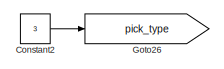
[diagram: root canvas - part 1/8, top center region]
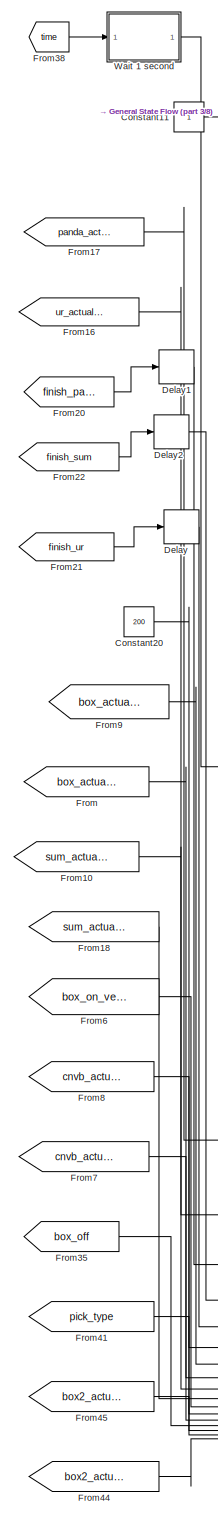
[diagram: root canvas - part 2/8, left side, full height]
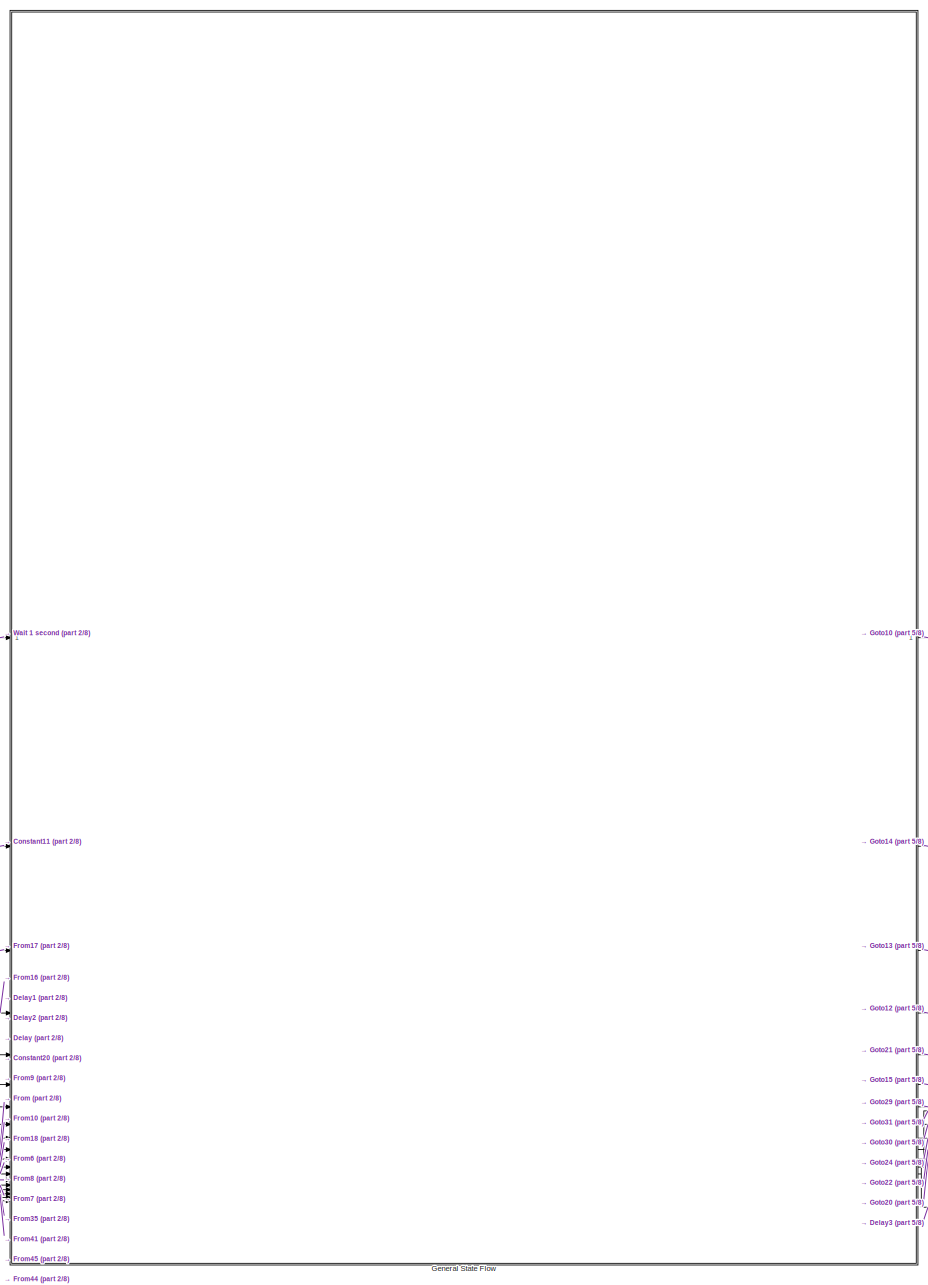
[diagram: root canvas - part 3/8, center side, full height]
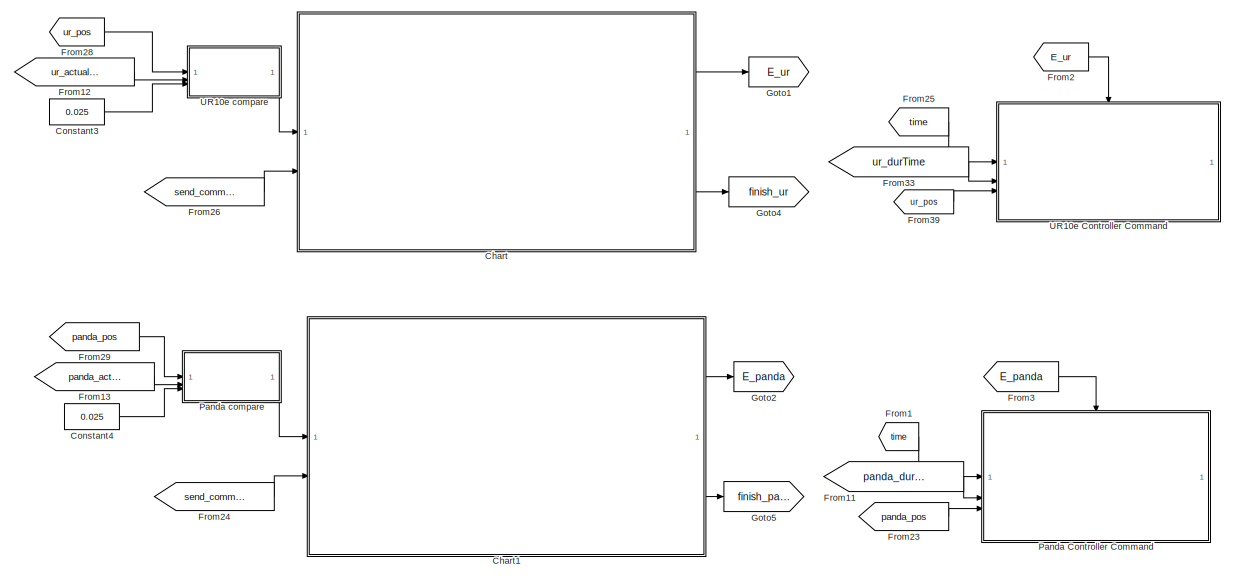
[diagram: root canvas - part 4/8, top right region]
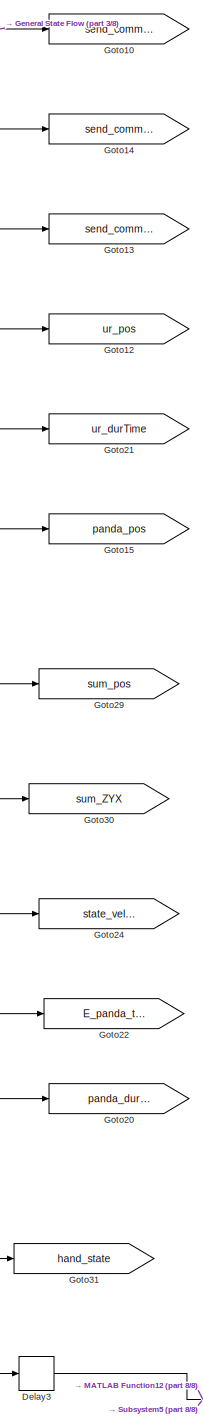
[diagram: root canvas - part 5/8, center side, full height]
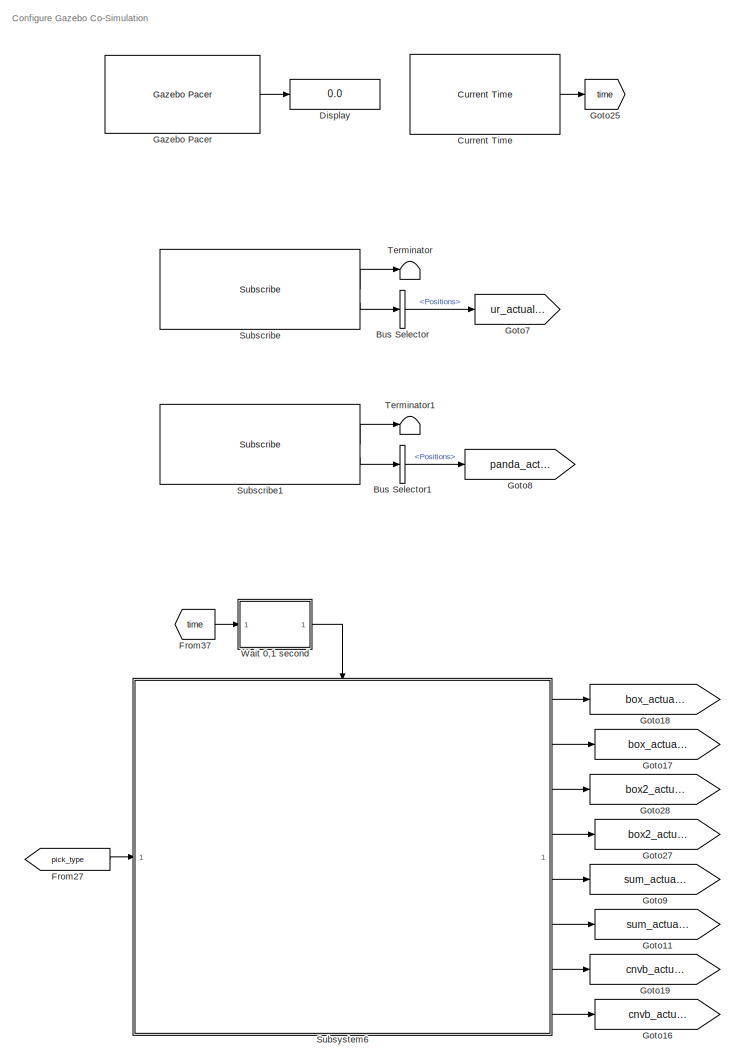
[diagram: root canvas - part 6/8, middle left region]
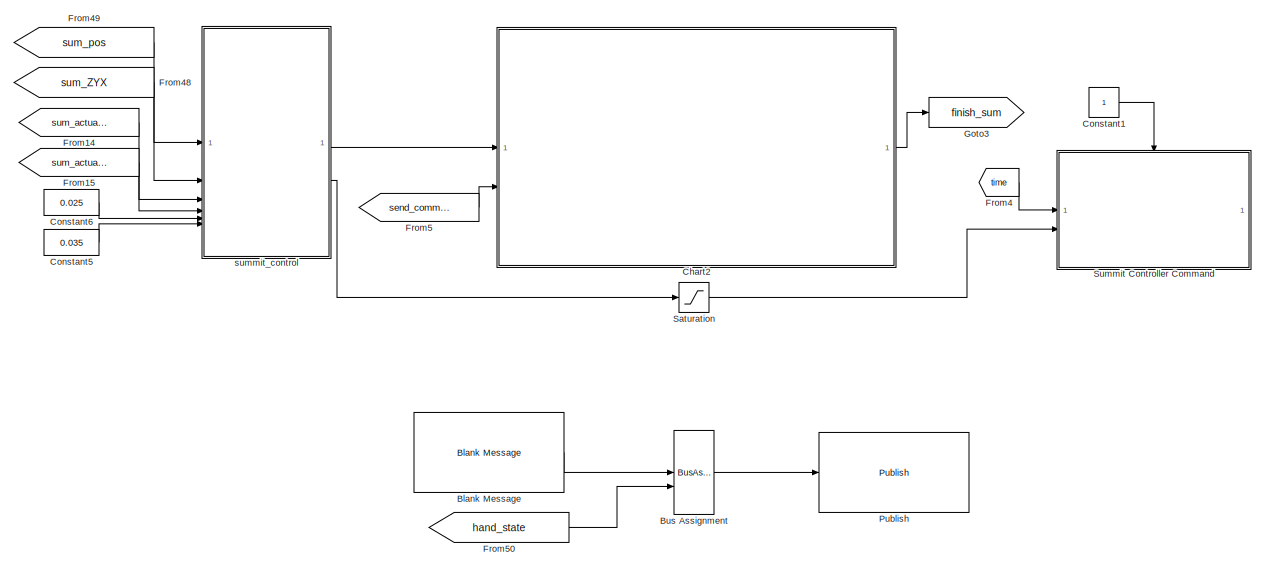
[diagram: root canvas - part 7/8, middle right region]
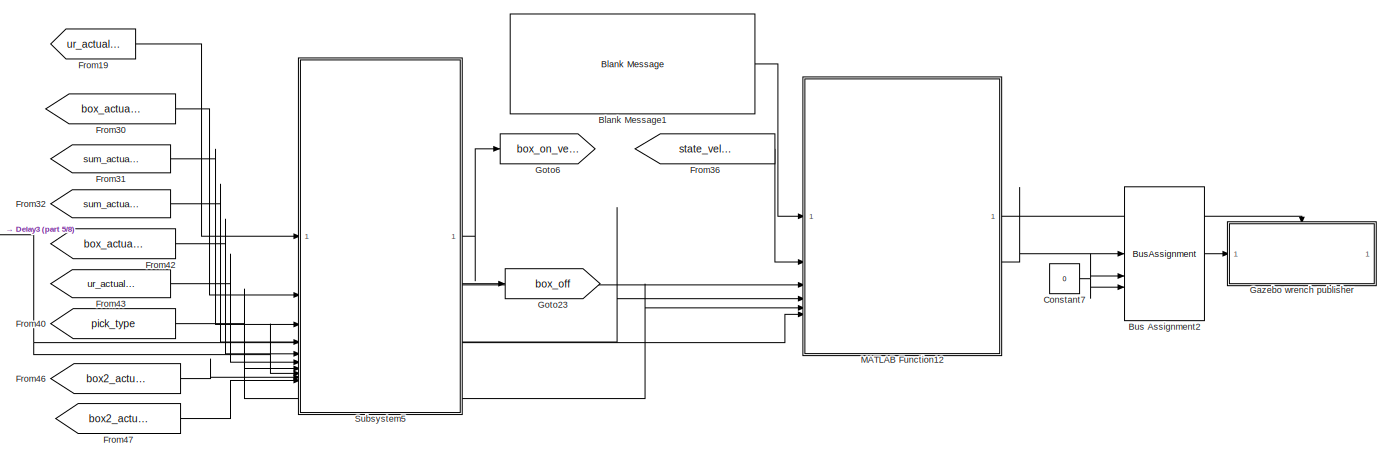
[diagram: root canvas - part 8/8, bottom right region]
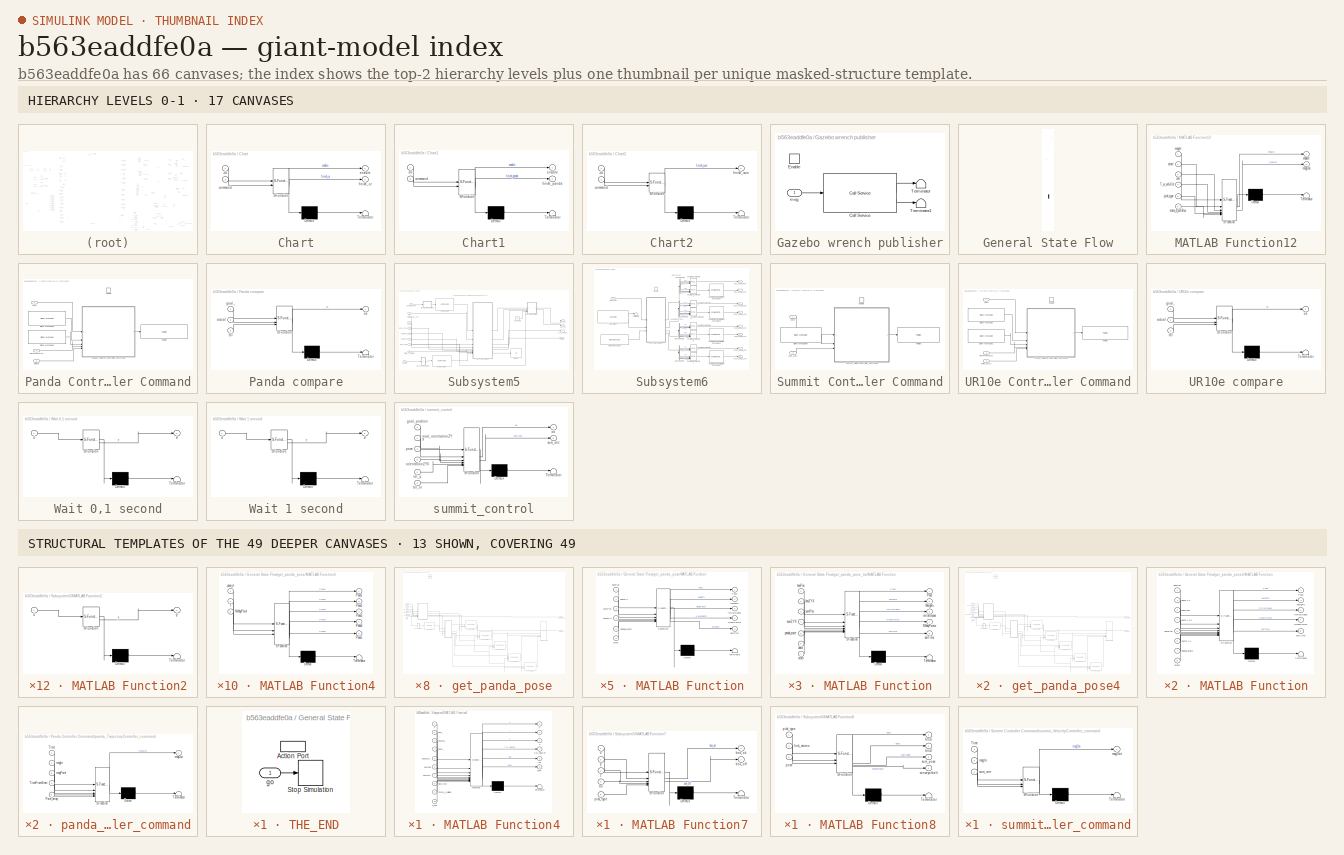
[diagram: thumbnail index - top-2 hierarchy levels (17 canvases) + 13 structural-template representatives of the remaining 49 canvases]
MODEL slx_b563eaddfe0a
KIND model
CONFIG AbsTol = auto
CONFIG EnableMultiTasking = off
CONFIG FixedStep = 0.05
CONFIG MaxStep = auto
CONFIG MinStep = auto
CONFIG PreLoadFcn = rosinit();
CONFIG RelTol = 1e-3
CONFIG SampleTimeConstraint = Unconstrained
CONFIG SolverName = FixedStepAuto
CONFIG StartTime = 0.0
CONFIG StopTime = inf
WORKSPACE source: mxarray member
WORKSPACE SL_ROS_VariableLengthArrays_MaxSizes: object (value not decoded)
WORKSPACE pitch = -10
WORKSPACE restart = 0
BLOCK [Reference] Blank Message  REF=robotlib/Blank Message
  LibrarySourceBlock = roslib/ROS/Blank Message
  SourceBlock = robotlib/Blank Message
  SourceType = ROS Blank Message
BLOCK [Reference] Blank Message1  REF=robotlib/Blank Message
  LibrarySourceBlock = roslib/ROS/Blank Message
  SourceBlock = robotlib/Blank Message
  SourceType = ROS Blank Message
BLOCK [BusAssignment] Bus Assignment
  AssignedSignals = Data
BLOCK [BusAssignment] Bus Assignment2
  AssignedSignals = StartTime.Sec,StartTime.Nsec
BLOCK [BusSelector] Bus Selector
  OutputSignals = Actual.Positions
BLOCK [BusSelector] Bus Selector1
  OutputSignals = Actual.Positions
BLOCK [SubSystem] Chart
  ErrorFcn = Stateflow.Translate.translate
  PermitHierarchicalResolution = ExplicitOnly
  SFBlockType = Chart
  TreatAsAtomicUnit = on
BLOCK [Demux] Chart/ Demux 
  Outputs = 1
BLOCK [S-Function] Chart/ SFunction 
  EnableBusSupport = on
  FunctionName = sf_sfun
  PortCounts = [2 3]
  SFcnIsStateOwnerBlock = off
  SFunctionDeploymentMode = off
  Tag = Stateflow S-Function 2
BLOCK [Terminator] Chart/ Terminator 
BLOCK [Inport] Chart/command
  Port = 2
BLOCK [Outport] Chart/enable
BLOCK [Outport] Chart/finish_ur
  Port = 2
BLOCK [Inport] Chart/ok
BLOCK [SubSystem] Chart1
  ErrorFcn = Stateflow.Translate.translate
  PermitHierarchicalResolution = ExplicitOnly
  SFBlockType = Chart
  TreatAsAtomicUnit = on
BLOCK [Demux] Chart1/ Demux 
  Outputs = 1
BLOCK [S-Function] Chart1/ SFunction 
  EnableBusSupport = on
  FunctionName = sf_sfun
  PortCounts = [2 3]
  SFcnIsStateOwnerBlock = off
  SFunctionDeploymentMode = off
  Tag = Stateflow S-Function 5
BLOCK [Terminator] Chart1/ Terminator 
BLOCK [Inport] Chart1/command
  Port = 2
BLOCK [Outport] Chart1/enable
BLOCK [Outport] Chart1/finish_panda
  Port = 2
BLOCK [Inport] Chart1/ok
BLOCK [SubSystem] Chart2
  ErrorFcn = Stateflow.Translate.translate
  PermitHierarchicalResolution = ExplicitOnly
  SFBlockType = Chart
  TreatAsAtomicUnit = on
BLOCK [Demux] Chart2/ Demux 
  Outputs = 1
BLOCK [S-Function] Chart2/ SFunction 
  EnableBusSupport = on
  FunctionName = sf_sfun
  PortCounts = [2 2]
  SFcnIsStateOwnerBlock = off
  SFunctionDeploymentMode = off
  Tag = Stateflow S-Function 7
BLOCK [Terminator] Chart2/ Terminator 
BLOCK [Inport] Chart2/command
  Port = 2
BLOCK [Outport] Chart2/finish_sum
BLOCK [Inport] Chart2/ok
BLOCK [Constant] Constant1
BLOCK [Constant] Constant11
BLOCK [Constant] Constant2
  Value = 3
BLOCK [Constant] Constant20
  Value = 200
BLOCK [Constant] Constant3
  Value = 0.025
BLOCK [Constant] Constant4
  Value = 0.025
BLOCK [Constant] Constant5
  Value = 0.035
BLOCK [Constant] Constant6
  Value = 0.025
BLOCK [Constant] Constant7
  Value = 0
BLOCK [Reference] Current Time  REF=robotlib/Current Time
  LibrarySourceBlock = roslib/ROS/Current Time
  SourceBlock = robotlib/Current Time
  SourceType = ros.slros.internal.block.CurrentTime
BLOCK [Delay] Delay
  DelayLength = 1
  InitialCondition = 0
  InputPortMap = u0
BLOCK [Delay] Delay1
  DelayLength = 1
  InitialCondition = 0
  InputPortMap = u0
BLOCK [Delay] Delay2
  DelayLength = 1
  InitialCondition = 0
  InputPortMap = u0
BLOCK [Delay] Delay3
  DelayLength = 1
  InitialCondition = 0
  InputPortMap = u0
BLOCK [Display] Display
  Decimation = 1
BLOCK [From] From
  GotoTag = box_actual_pos
BLOCK [From] From1
  GotoTag = time
  TagVisibility = global
BLOCK [From] From10
  GotoTag = sum_actual_ZYX
BLOCK [From] From11
  GotoTag = panda_durTime
  TagVisibility = global
BLOCK [From] From12
  GotoTag = ur_actual_pos
BLOCK [From] From13
  GotoTag = panda_actual_pos
BLOCK [From] From14
  GotoTag = sum_actual_pos
BLOCK [From] From15
  GotoTag = sum_actual_ZYX
BLOCK [From] From16
  GotoTag = ur_actual_pos
BLOCK [From] From17
  GotoTag = panda_actual_pos
BLOCK [From] From18
  GotoTag = sum_actual_pos
BLOCK [From] From19
  GotoTag = ur_actual_pos
BLOCK [From] From2
  GotoTag = E_ur
BLOCK [From] From20
  GotoTag = finish_panda
BLOCK [From] From21
  GotoTag = finish_ur
BLOCK [From] From22
  GotoTag = finish_sum
BLOCK [From] From23
  GotoTag = panda_pos
  TagVisibility = global
BLOCK [From] From24
  GotoTag = send_command_panda
  TagVisibility = global
BLOCK [From] From25
  GotoTag = time
  TagVisibility = global
BLOCK [From] From26
  GotoTag = send_command_ur10e
  TagVisibility = global
BLOCK [From] From27
  GotoTag = pick_type
BLOCK [From] From28
  GotoTag = ur_pos
  TagVisibility = global
BLOCK [From] From29
  GotoTag = panda_pos
  TagVisibility = global
BLOCK [From] From3
  GotoTag = E_panda
BLOCK [From] From30
  GotoTag = box_actual_pos
BLOCK [From] From31
  GotoTag = sum_actual_pos
BLOCK [From] From32
  GotoTag = sum_actual_ZYX
BLOCK [From] From33
  GotoTag = ur_durTime
  TagVisibility = global
BLOCK [From] From35
  GotoTag = box_off
BLOCK [From] From36
  GotoTag = state_velvet
  TagVisibility = global
BLOCK [From] From37
  GotoTag = time
  TagVisibility = global
BLOCK [From] From38
  GotoTag = time
  TagVisibility = global
BLOCK [From] From39
  GotoTag = ur_pos
  TagVisibility = global
BLOCK [From] From4
  GotoTag = time
  TagVisibility = global
BLOCK [From] From40
  GotoTag = pick_type
BLOCK [From] From41
  GotoTag = pick_type
BLOCK [From] From42
  GotoTag = box_actual_ZYX
BLOCK [From] From43
  GotoTag = ur_actual_pos
BLOCK [From] From44
  GotoTag = box2_actual_pos
BLOCK [From] From45
  GotoTag = box2_actual_ZYX
BLOCK [From] From46
  GotoTag = box2_actual_pos
BLOCK [From] From47
  GotoTag = box2_actual_ZYX
BLOCK [From] From48
  GotoTag = sum_ZYX
  TagVisibility = global
BLOCK [From] From49
  GotoTag = sum_pos
  TagVisibility = global
BLOCK [From] From5
  GotoTag = send_command_sum
  TagVisibility = global
BLOCK [From] From50
  GotoTag = hand_state
  TagVisibility = global
BLOCK [From] From6
  GotoTag = box_on_velvet
BLOCK [From] From7
  GotoTag = cnvb_actual_pos
BLOCK [From] From8
  GotoTag = cnvb_actual_ZYX
BLOCK [From] From9
  GotoTag = box_actual_ZYX
BLOCK [Reference] Gazebo Pacer  REF=robotgazebolib/Gazebo Pacer
  SourceBlock = robotgazebolib/Gazebo Pacer
  SourceType = Gazebo Pacer
BLOCK [SubSystem] Gazebo wrench publisher
BLOCK [Reference] Gazebo wrench publisher/Call Service  REF=robotlib/Call Service
  LibrarySourceBlock = roslib/ROS/Call Service
  SourceBlock = robotlib/Call Service
  SourceType = ROS Call Service
BLOCK [EnablePort] Gazebo wrench publisher/Enable
BLOCK [Terminator] Gazebo wrench publisher/Terminator
BLOCK [Terminator] Gazebo wrench publisher/Terminator1
BLOCK [Inport] Gazebo wrench publisher/msg
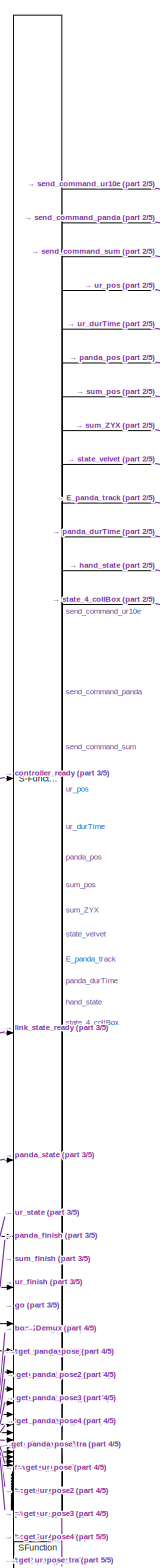
[diagram: General State Flow - part 1/5, top center region]
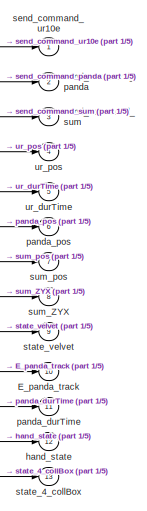
[diagram: General State Flow - part 2/5, top right region]
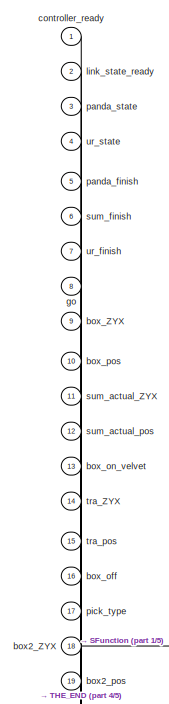
[diagram: General State Flow - part 3/5, top left region]
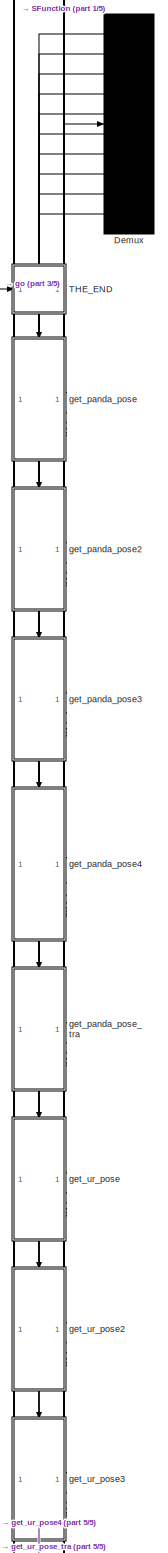
[diagram: General State Flow - part 4/5, bottom center region]
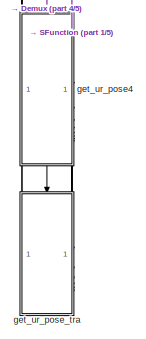
[diagram: General State Flow - part 5/5, bottom center region]
BLOCK [SubSystem] General State Flow
  ErrorFcn = Stateflow.Translate.translate
  PermitHierarchicalResolution = ExplicitOnly
  SFBlockType = Chart
  TreatAsAtomicUnit = on
BLOCK [Demux] General State Flow/ Demux 
  Outputs = 10
BLOCK [S-Function] General State Flow/ SFunction 
  EnableBusSupport = on
  FunctionName = sf_sfun
  PortCounts = [39 78]
  SFcnIsStateOwnerBlock = off
  SFunctionDeploymentMode = off
  Tag = Stateflow S-Function 14
BLOCK [Outport] General State Flow/E_panda_track
  Port = 10
BLOCK [SubSystem] General State Flow/THE_END
  PreDeleteFcn = Stateflow.SLINSF.SimulinkMan.removePreDeleteFcn
  UndoDeleteFcn = Stateflow.SLINSF.SimulinkMan.restorePreDeleteFcn
BLOCK [ActionPort] General State Flow/THE_END/Action Port
  CopyFcn = Stateflow.SLINSF.SimulinkMan.removeBlockPreDeleteFcn
  PreDeleteFcn = Stateflow.SLINSF.SimulinkMan.unsafePredeleteFcn
BLOCK [Stop] General State Flow/THE_END/Stop Simulation
BLOCK [Inport] General State Flow/THE_END/go
BLOCK [Inport] General State Flow/box2_ZYX
  Port = 18
BLOCK [Inport] General State Flow/box2_pos
  Port = 19
BLOCK [Inport] General State Flow/box_ZYX
  Port = 9
BLOCK [Inport] General State Flow/box_off
  Port = 16
BLOCK [Inport] General State Flow/box_on_velvet
  Port = 13
BLOCK [Inport] General State Flow/box_pos
  Port = 10
BLOCK [Inport] General State Flow/controller_ready
BLOCK [SubSystem] General State Flow/get_panda_pose
  PreDeleteFcn = Stateflow.SLINSF.SimulinkMan.removePreDeleteFcn
  UndoDeleteFcn = Stateflow.SLINSF.SimulinkMan.restorePreDeleteFcn
BLOCK [Reference] General State Flow/get_panda_pose/Get Transform  REF=robotmaniplib/Get Transform
  SourceBlock = robotmaniplib/Get Transform
  SourceType = Get Transform
BLOCK [Reference] General State Flow/get_panda_pose/Inverse Kinematics1  REF=robotmaniplib/Inverse Kinematics
  SourceBlock = robotmaniplib/Inverse Kinematics
  SourceType = Inverse Kinematics
BLOCK [Reference] General State Flow/get_panda_pose/Inverse Kinematics2  REF=robotmaniplib/Inverse Kinematics
  SourceBlock = robotmaniplib/Inverse Kinematics
  SourceType = Inverse Kinematics
BLOCK [Reference] General State Flow/get_panda_pose/Inverse Kinematics3  REF=robotmaniplib/Inverse Kinematics
  SourceBlock = robotmaniplib/Inverse Kinematics
  SourceType = Inverse Kinematics
BLOCK [Reference] General State Flow/get_panda_pose/Inverse Kinematics4  REF=robotmaniplib/Inverse Kinematics
  SourceBlock = robotmaniplib/Inverse Kinematics
  SourceType = Inverse Kinematics
BLOCK [Reference] General State Flow/get_panda_pose/Inverse Kinematics5  REF=robotmaniplib/Inverse Kinematics
  SourceBlock = robotmaniplib/Inverse Kinematics
  SourceType = Inverse Kinematics
BLOCK [SubSystem] General State Flow/get_panda_pose/MATLAB Function
  ErrorFcn = Stateflow.Translate.translate
  LibrarySourceBlock = simulink/User-Defined\nFunctions/MATLAB Function
  PermitHierarchicalResolution = ExplicitOnly
  SFBlockType = MATLAB Function
  TreatAsAtomicUnit = on
BLOCK [Demux] General State Flow/get_panda_pose/MATLAB Function/ Demux 
  Outputs = 1
BLOCK [S-Function] General State Flow/get_panda_pose/MATLAB Function/ SFunction 
  EnableBusSupport = off
  FunctionName = sf_sfun
  PortCounts = [6 6]
  SFcnIsStateOwnerBlock = off
  SFunctionDeploymentMode = off
  Tag = Stateflow S-Function 13
BLOCK [Terminator] General State Flow/get_panda_pose/MATLAB Function/ Terminator 
BLOCK [Outport] General State Flow/get_panda_pose/MATLAB Function/NWayPoints
  Port = 4
BLOCK [Outport] General State Flow/get_panda_pose/MATLAB Function/Pose
BLOCK [Outport] General State Flow/get_panda_pose/MATLAB Function/Weights
  Port = 2
BLOCK [Inport] General State Flow/get_panda_pose/MATLAB Function/boxPos
BLOCK [Inport] General State Flow/get_panda_pose/MATLAB Function/boxZYX
  Port = 2
BLOCK [Outport] General State Flow/get_panda_pose/MATLAB Function/durTime
  Port = 5
BLOCK [Outport] General State Flow/get_panda_pose/MATLAB Function/initialGuess
  Port = 3
BLOCK [Inport] General State Flow/get_panda_pose/MATLAB Function/panda_state
  Port = 5
BLOCK [Inport] General State Flow/get_panda_pose/MATLAB Function/state
  Port = 6
BLOCK [Inport] General State Flow/get_panda_pose/MATLAB Function/sumPos
  Port = 3
BLOCK [Inport] General State Flow/get_panda_pose/MATLAB Function/sumZYX
  Port = 4
BLOCK [SubSystem] General State Flow/get_panda_pose/MATLAB Function4
  ErrorFcn = Stateflow.Translate.translate
  LibrarySourceBlock = simulink/User-Defined\nFunctions/MATLAB Function
  PermitHierarchicalResolution = ExplicitOnly
  SFBlockType = MATLAB Function
  TreatAsAtomicUnit = on
BLOCK [Demux] General State Flow/get_panda_pose/MATLAB Function4/ Demux 
  Outputs = 1
BLOCK [S-Function] General State Flow/get_panda_pose/MATLAB Function4/ SFunction 
  EnableBusSupport = on
  FunctionName = sf_sfun
  PortCounts = [3 6]
  SFcnIsStateOwnerBlock = off
  SFunctionDeploymentMode = off
  Tag = Stateflow S-Function 33
BLOCK [Terminator] General State Flow/get_panda_pose/MATLAB Function4/ Terminator 
BLOCK [Inport] General State Flow/get_panda_pose/MATLAB Function4/NWayPoint
  Port = 3
BLOCK [Outport] General State Flow/get_panda_pose/MATLAB Function4/Pose1
BLOCK [Outport] General State Flow/get_panda_pose/MATLAB Function4/Pose2
  Port = 2
BLOCK [Outport] General State Flow/get_panda_pose/MATLAB Function4/Pose3
  Port = 3
BLOCK [Outport] General State Flow/get_panda_pose/MATLAB Function4/Pose4
  Port = 4
BLOCK [Outport] General State Flow/get_panda_pose/MATLAB Function4/Pose5
  Port = 5
BLOCK [Inport] General State Flow/get_panda_pose/MATLAB Function4/T
  Port = 2
BLOCK [Inport] General State Flow/get_panda_pose/MATLAB Function4/pose_d
BLOCK [SubSystem] General State Flow/get_panda_pose/MATLAB Function6
  ErrorFcn = Stateflow.Translate.translate
  LibrarySourceBlock = simulink/User-Defined\nFunctions/MATLAB Function
  PermitHierarchicalResolution = ExplicitOnly
  SFBlockType = MATLAB Function
  TreatAsAtomicUnit = on
BLOCK [Demux] General State Flow/get_panda_pose/MATLAB Function6/ Demux 
  Outputs = 1
BLOCK [S-Function] General State Flow/get_panda_pose/MATLAB Function6/ SFunction 
  EnableBusSupport = on
  FunctionName = sf_sfun
  PortCounts = [1 2]
  SFcnIsStateOwnerBlock = off
  SFunctionDeploymentMode = off
  Tag = Stateflow S-Function 34
BLOCK [Terminator] General State Flow/get_panda_pose/MATLAB Function6/ Terminator 
BLOCK [Inport] General State Flow/get_panda_pose/MATLAB Function6/u
BLOCK [Outport] General State Flow/get_panda_pose/MATLAB Function6/y
BLOCK [Concatenate] General State Flow/get_panda_pose/Vector Concatenate
  ConcatenateDimension = 2
  Mode = Multidimensional array
  NumInputs = 5
BLOCK [Inport] General State Flow/get_panda_pose/box_ZYX
  OutDataTypeStr = double
  Port = 2
  PortDimensions = [3,1]
  SignalType = real
  VarSizeSig = No
BLOCK [Inport] General State Flow/get_panda_pose/box_pos
  OutDataTypeStr = double
  PortDimensions = [3,1]
  SignalType = real
  VarSizeSig = No
BLOCK [Outport] General State Flow/get_panda_pose/durTime_panda
  Port = 2
BLOCK [TriggerPort] General State Flow/get_panda_pose/f
  CopyFcn = Stateflow.SLINSF.SimulinkMan.removeBlockPreDeleteFcn
  PreDeleteFcn = Stateflow.SLINSF.SimulinkMan.unsafePredeleteFcn
  StatesWhenEnabling = held
  TriggerType = function-call
  VariantControl = (inherit)
BLOCK [Outport] General State Flow/get_panda_pose/panda_pos
BLOCK [Inport] General State Flow/get_panda_pose/panda_state
  OutDataTypeStr = double
  Port = 5
  PortDimensions = [7,1]
  SignalType = real
  VarSizeSig = No
BLOCK [Inport] General State Flow/get_panda_pose/state
  OutDataTypeStr = double
  Port = 6
  PortDimensions = 1
  SignalType = real
  VarSizeSig = No
BLOCK [Inport] General State Flow/get_panda_pose/sum_actual_ZYX
  OutDataTypeStr = double
  Port = 4
  PortDimensions = [3,1]
  SignalType = real
  VarSizeSig = No
BLOCK [Inport] General State Flow/get_panda_pose/sum_actual_pos
  OutDataTypeStr = double
  Port = 3
  PortDimensions = [3,1]
  SignalType = real
  VarSizeSig = No
BLOCK [SubSystem] General State Flow/get_panda_pose2
  PreDeleteFcn = Stateflow.SLINSF.SimulinkMan.removePreDeleteFcn
  UndoDeleteFcn = Stateflow.SLINSF.SimulinkMan.restorePreDeleteFcn
BLOCK [Reference] General State Flow/get_panda_pose2/Get Transform  REF=robotmaniplib/Get Transform
  SourceBlock = robotmaniplib/Get Transform
  SourceType = Get Transform
BLOCK [Reference] General State Flow/get_panda_pose2/Inverse Kinematics1  REF=robotmaniplib/Inverse Kinematics
  SourceBlock = robotmaniplib/Inverse Kinematics
  SourceType = Inverse Kinematics
BLOCK [Reference] General State Flow/get_panda_pose2/Inverse Kinematics2  REF=robotmaniplib/Inverse Kinematics
  SourceBlock = robotmaniplib/Inverse Kinematics
  SourceType = Inverse Kinematics
BLOCK [Reference] General State Flow/get_panda_pose2/Inverse Kinematics3  REF=robotmaniplib/Inverse Kinematics
  SourceBlock = robotmaniplib/Inverse Kinematics
  SourceType = Inverse Kinematics
BLOCK [Reference] General State Flow/get_panda_pose2/Inverse Kinematics4  REF=robotmaniplib/Inverse Kinematics
  SourceBlock = robotmaniplib/Inverse Kinematics
  SourceType = Inverse Kinematics
BLOCK [Reference] General State Flow/get_panda_pose2/Inverse Kinematics5  REF=robotmaniplib/Inverse Kinematics
  SourceBlock = robotmaniplib/Inverse Kinematics
  SourceType = Inverse Kinematics
BLOCK [SubSystem] General State Flow/get_panda_pose2/MATLAB Function
  ErrorFcn = Stateflow.Translate.translate
  LibrarySourceBlock = simulink/User-Defined\nFunctions/MATLAB Function
  PermitHierarchicalResolution = ExplicitOnly
  SFBlockType = MATLAB Function
  TreatAsAtomicUnit = on
BLOCK [Demux] General State Flow/get_panda_pose2/MATLAB Function/ Demux 
  Outputs = 1
BLOCK [S-Function] General State Flow/get_panda_pose2/MATLAB Function/ SFunction 
  EnableBusSupport = off
  FunctionName = sf_sfun
  PortCounts = [6 6]
  SFcnIsStateOwnerBlock = off
  SFunctionDeploymentMode = off
  Tag = Stateflow S-Function 36
BLOCK [Terminator] General State Flow/get_panda_pose2/MATLAB Function/ Terminator 
BLOCK [Outport] General State Flow/get_panda_pose2/MATLAB Function/NWayPoints
  Port = 4
BLOCK [Outport] General State Flow/get_panda_pose2/MATLAB Function/Pose
BLOCK [Outport] General State Flow/get_panda_pose2/MATLAB Function/Weights
  Port = 2
BLOCK [Inport] General State Flow/get_panda_pose2/MATLAB Function/boxPos
BLOCK [Inport] General State Flow/get_panda_pose2/MATLAB Function/boxZYX
  Port = 2
BLOCK [Outport] General State Flow/get_panda_pose2/MATLAB Function/durTime
  Port = 5
BLOCK [Outport] General State Flow/get_panda_pose2/MATLAB Function/initialGuess
  Port = 3
BLOCK [Inport] General State Flow/get_panda_pose2/MATLAB Function/panda_state
  Port = 5
BLOCK [Inport] General State Flow/get_panda_pose2/MATLAB Function/state
  Port = 6
BLOCK [Inport] General State Flow/get_panda_pose2/MATLAB Function/sumPos
  Port = 3
BLOCK [Inport] General State Flow/get_panda_pose2/MATLAB Function/sumZYX
  Port = 4
BLOCK [SubSystem] General State Flow/get_panda_pose2/MATLAB Function4
  ErrorFcn = Stateflow.Translate.translate
  LibrarySourceBlock = simulink/User-Defined\nFunctions/MATLAB Function
  PermitHierarchicalResolution = ExplicitOnly
  SFBlockType = MATLAB Function
  TreatAsAtomicUnit = on
BLOCK [Demux] General State Flow/get_panda_pose2/MATLAB Function4/ Demux 
  Outputs = 1
BLOCK [S-Function] General State Flow/get_panda_pose2/MATLAB Function4/ SFunction 
  EnableBusSupport = on
  FunctionName = sf_sfun
  PortCounts = [3 6]
  SFcnIsStateOwnerBlock = off
  SFunctionDeploymentMode = off
  Tag = Stateflow S-Function 37
BLOCK [Terminator] General State Flow/get_panda_pose2/MATLAB Function4/ Terminator 
BLOCK [Inport] General State Flow/get_panda_pose2/MATLAB Function4/NWayPoint
  Port = 3
BLOCK [Outport] General State Flow/get_panda_pose2/MATLAB Function4/Pose1
BLOCK [Outport] General State Flow/get_panda_pose2/MATLAB Function4/Pose2
  Port = 2
BLOCK [Outport] General State Flow/get_panda_pose2/MATLAB Function4/Pose3
  Port = 3
BLOCK [Outport] General State Flow/get_panda_pose2/MATLAB Function4/Pose4
  Port = 4
BLOCK [Outport] General State Flow/get_panda_pose2/MATLAB Function4/Pose5
  Port = 5
BLOCK [Inport] General State Flow/get_panda_pose2/MATLAB Function4/T
  Port = 2
BLOCK [Inport] General State Flow/get_panda_pose2/MATLAB Function4/pose_d
BLOCK [SubSystem] General State Flow/get_panda_pose2/MATLAB Function6
  ErrorFcn = Stateflow.Translate.translate
  LibrarySourceBlock = simulink/User-Defined\nFunctions/MATLAB Function
  PermitHierarchicalResolution = ExplicitOnly
  SFBlockType = MATLAB Function
  TreatAsAtomicUnit = on
BLOCK [Demux] General State Flow/get_panda_pose2/MATLAB Function6/ Demux 
  Outputs = 1
BLOCK [S-Function] General State Flow/get_panda_pose2/MATLAB Function6/ SFunction 
  EnableBusSupport = on
  FunctionName = sf_sfun
  PortCounts = [1 2]
  SFcnIsStateOwnerBlock = off
  SFunctionDeploymentMode = off
  Tag = Stateflow S-Function 38
BLOCK [Terminator] General State Flow/get_panda_pose2/MATLAB Function6/ Terminator 
BLOCK [Inport] General State Flow/get_panda_pose2/MATLAB Function6/u
BLOCK [Outport] General State Flow/get_panda_pose2/MATLAB Function6/y
BLOCK [Concatenate] General State Flow/get_panda_pose2/Vector Concatenate
  ConcatenateDimension = 2
  Mode = Multidimensional array
  NumInputs = 5
BLOCK [Inport] General State Flow/get_panda_pose2/box_ZYX
  OutDataTypeStr = double
  Port = 2
  PortDimensions = [3,1]
  SignalType = real
  VarSizeSig = No
BLOCK [Inport] General State Flow/get_panda_pose2/box_pos
  OutDataTypeStr = double
  PortDimensions = [3,1]
  SignalType = real
  VarSizeSig = No
BLOCK [Outport] General State Flow/get_panda_pose2/durTime_panda
  Port = 2
BLOCK [TriggerPort] General State Flow/get_panda_pose2/f
  CopyFcn = Stateflow.SLINSF.SimulinkMan.removeBlockPreDeleteFcn
  PreDeleteFcn = Stateflow.SLINSF.SimulinkMan.unsafePredeleteFcn
  StatesWhenEnabling = held
  TriggerType = function-call
  VariantControl = (inherit)
BLOCK [Outport] General State Flow/get_panda_pose2/panda_pos
BLOCK [Inport] General State Flow/get_panda_pose2/panda_state
  OutDataTypeStr = double
  Port = 5
  PortDimensions = [7,1]
  SignalType = real
  VarSizeSig = No
BLOCK [Inport] General State Flow/get_panda_pose2/state
  OutDataTypeStr = double
  Port = 6
  PortDimensions = 1
  SignalType = real
  VarSizeSig = No
BLOCK [Inport] General State Flow/get_panda_pose2/sum_actual_ZYX
  OutDataTypeStr = double
  Port = 4
  PortDimensions = [3,1]
  SignalType = real
  VarSizeSig = No
BLOCK [Inport] General State Flow/get_panda_pose2/sum_actual_pos
  OutDataTypeStr = double
  Port = 3
  PortDimensions = [3,1]
  SignalType = real
  VarSizeSig = No
BLOCK [SubSystem] General State Flow/get_panda_pose3
  PreDeleteFcn = Stateflow.SLINSF.SimulinkMan.removePreDeleteFcn
  UndoDeleteFcn = Stateflow.SLINSF.SimulinkMan.restorePreDeleteFcn
BLOCK [Reference] General State Flow/get_panda_pose3/Get Transform  REF=robotmaniplib/Get Transform
  SourceBlock = robotmaniplib/Get Transform
  SourceType = Get Transform
BLOCK [Reference] General State Flow/get_panda_pose3/Inverse Kinematics1  REF=robotmaniplib/Inverse Kinematics
  SourceBlock = robotmaniplib/Inverse Kinematics
  SourceType = Inverse Kinematics
BLOCK [Reference] General State Flow/get_panda_pose3/Inverse Kinematics2  REF=robotmaniplib/Inverse Kinematics
  SourceBlock = robotmaniplib/Inverse Kinematics
  SourceType = Inverse Kinematics
BLOCK [Reference] General State Flow/get_panda_pose3/Inverse Kinematics3  REF=robotmaniplib/Inverse Kinematics
  SourceBlock = robotmaniplib/Inverse Kinematics
  SourceType = Inverse Kinematics
BLOCK [Reference] General State Flow/get_panda_pose3/Inverse Kinematics4  REF=robotmaniplib/Inverse Kinematics
  SourceBlock = robotmaniplib/Inverse Kinematics
  SourceType = Inverse Kinematics
BLOCK [Reference] General State Flow/get_panda_pose3/Inverse Kinematics5  REF=robotmaniplib/Inverse Kinematics
  SourceBlock = robotmaniplib/Inverse Kinematics
  SourceType = Inverse Kinematics
BLOCK [SubSystem] General State Flow/get_panda_pose3/MATLAB Function
  ErrorFcn = Stateflow.Translate.translate
  LibrarySourceBlock = simulink/User-Defined\nFunctions/MATLAB Function
  PermitHierarchicalResolution = ExplicitOnly
  SFBlockType = MATLAB Function
  TreatAsAtomicUnit = on
BLOCK [Demux] General State Flow/get_panda_pose3/MATLAB Function/ Demux 
  Outputs = 1
BLOCK [S-Function] General State Flow/get_panda_pose3/MATLAB Function/ SFunction 
  EnableBusSupport = off
  FunctionName = sf_sfun
  PortCounts = [6 6]
  SFcnIsStateOwnerBlock = off
  SFunctionDeploymentMode = off
  Tag = Stateflow S-Function 15
BLOCK [Terminator] General State Flow/get_panda_pose3/MATLAB Function/ Terminator 
BLOCK [Outport] General State Flow/get_panda_pose3/MATLAB Function/NWayPoints
  Port = 4
BLOCK [Outport] General State Flow/get_panda_pose3/MATLAB Function/Pose
BLOCK [Outport] General State Flow/get_panda_pose3/MATLAB Function/Weights
  Port = 2
BLOCK [Inport] General State Flow/get_panda_pose3/MATLAB Function/boxPos
BLOCK [Inport] General State Flow/get_panda_pose3/MATLAB Function/boxZYX
  Port = 2
BLOCK [Outport] General State Flow/get_panda_pose3/MATLAB Function/durTime
  Port = 5
BLOCK [Outport] General State Flow/get_panda_pose3/MATLAB Function/initialGuess
  Port = 3
BLOCK [Inport] General State Flow/get_panda_pose3/MATLAB Function/panda_state
  Port = 5
BLOCK [Inport] General State Flow/get_panda_pose3/MATLAB Function/state
  Port = 6
BLOCK [Inport] General State Flow/get_panda_pose3/MATLAB Function/sumPos
  Port = 3
BLOCK [Inport] General State Flow/get_panda_pose3/MATLAB Function/sumZYX
  Port = 4
BLOCK [SubSystem] General State Flow/get_panda_pose3/MATLAB Function4
  ErrorFcn = Stateflow.Translate.translate
  LibrarySourceBlock = simulink/User-Defined\nFunctions/MATLAB Function
  PermitHierarchicalResolution = ExplicitOnly
  SFBlockType = MATLAB Function
  TreatAsAtomicUnit = on
BLOCK [Demux] General State Flow/get_panda_pose3/MATLAB Function4/ Demux 
  Outputs = 1
BLOCK [S-Function] General State Flow/get_panda_pose3/MATLAB Function4/ SFunction 
  EnableBusSupport = on
  FunctionName = sf_sfun
  PortCounts = [3 6]
  SFcnIsStateOwnerBlock = off
  SFunctionDeploymentMode = off
  Tag = Stateflow S-Function 17
BLOCK [Terminator] General State Flow/get_panda_pose3/MATLAB Function4/ Terminator 
BLOCK [Inport] General State Flow/get_panda_pose3/MATLAB Function4/NWayPoint
  Port = 3
BLOCK [Outport] General State Flow/get_panda_pose3/MATLAB Function4/Pose1
BLOCK [Outport] General State Flow/get_panda_pose3/MATLAB Function4/Pose2
  Port = 2
BLOCK [Outport] General State Flow/get_panda_pose3/MATLAB Function4/Pose3
  Port = 3
BLOCK [Outport] General State Flow/get_panda_pose3/MATLAB Function4/Pose4
  Port = 4
BLOCK [Outport] General State Flow/get_panda_pose3/MATLAB Function4/Pose5
  Port = 5
BLOCK [Inport] General State Flow/get_panda_pose3/MATLAB Function4/T
  Port = 2
BLOCK [Inport] General State Flow/get_panda_pose3/MATLAB Function4/pose_d
BLOCK [SubSystem] General State Flow/get_panda_pose3/MATLAB Function6
  ErrorFcn = Stateflow.Translate.translate
  LibrarySourceBlock = simulink/User-Defined\nFunctions/MATLAB Function
  PermitHierarchicalResolution = ExplicitOnly
  SFBlockType = MATLAB Function
  TreatAsAtomicUnit = on
BLOCK [Demux] General State Flow/get_panda_pose3/MATLAB Function6/ Demux 
  Outputs = 1
BLOCK [S-Function] General State Flow/get_panda_pose3/MATLAB Function6/ SFunction 
  EnableBusSupport = on
  FunctionName = sf_sfun
  PortCounts = [1 2]
  SFcnIsStateOwnerBlock = off
  SFunctionDeploymentMode = off
  Tag = Stateflow S-Function 19
BLOCK [Terminator] General State Flow/get_panda_pose3/MATLAB Function6/ Terminator 
BLOCK [Inport] General State Flow/get_panda_pose3/MATLAB Function6/u
BLOCK [Outport] General State Flow/get_panda_pose3/MATLAB Function6/y
BLOCK [Concatenate] General State Flow/get_panda_pose3/Vector Concatenate
  ConcatenateDimension = 2
  Mode = Multidimensional array
  NumInputs = 5
BLOCK [Inport] General State Flow/get_panda_pose3/box_ZYX
  OutDataTypeStr = double
  Port = 2
  PortDimensions = [3,1]
  SignalType = real
  VarSizeSig = No
BLOCK [Inport] General State Flow/get_panda_pose3/box_pos
  OutDataTypeStr = double
  PortDimensions = [3,1]
  SignalType = real
  VarSizeSig = No
BLOCK [Outport] General State Flow/get_panda_pose3/durTime_panda
  Port = 2
BLOCK [TriggerPort] General State Flow/get_panda_pose3/f
  CopyFcn = Stateflow.SLINSF.SimulinkMan.removeBlockPreDeleteFcn
  PreDeleteFcn = Stateflow.SLINSF.SimulinkMan.unsafePredeleteFcn
  StatesWhenEnabling = held
  TriggerType = function-call
  VariantControl = (inherit)
BLOCK [Outport] General State Flow/get_panda_pose3/panda_pos
BLOCK [Inport] General State Flow/get_panda_pose3/panda_state
  OutDataTypeStr = double
  Port = 5
  PortDimensions = [7,1]
  SignalType = real
  VarSizeSig = No
BLOCK [Inport] General State Flow/get_panda_pose3/state
  OutDataTypeStr = double
  Port = 6
  PortDimensions = 1
  SignalType = real
  VarSizeSig = No
BLOCK [Inport] General State Flow/get_panda_pose3/sum_actual_ZYX
  OutDataTypeStr = double
  Port = 4
  PortDimensions = [3,1]
  SignalType = real
  VarSizeSig = No
BLOCK [Inport] General State Flow/get_panda_pose3/sum_actual_pos
  OutDataTypeStr = double
  Port = 3
  PortDimensions = [3,1]
  SignalType = real
  VarSizeSig = No
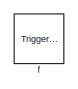
[diagram: General State Flow/get_panda_pose4 - part 1/3, top left region]
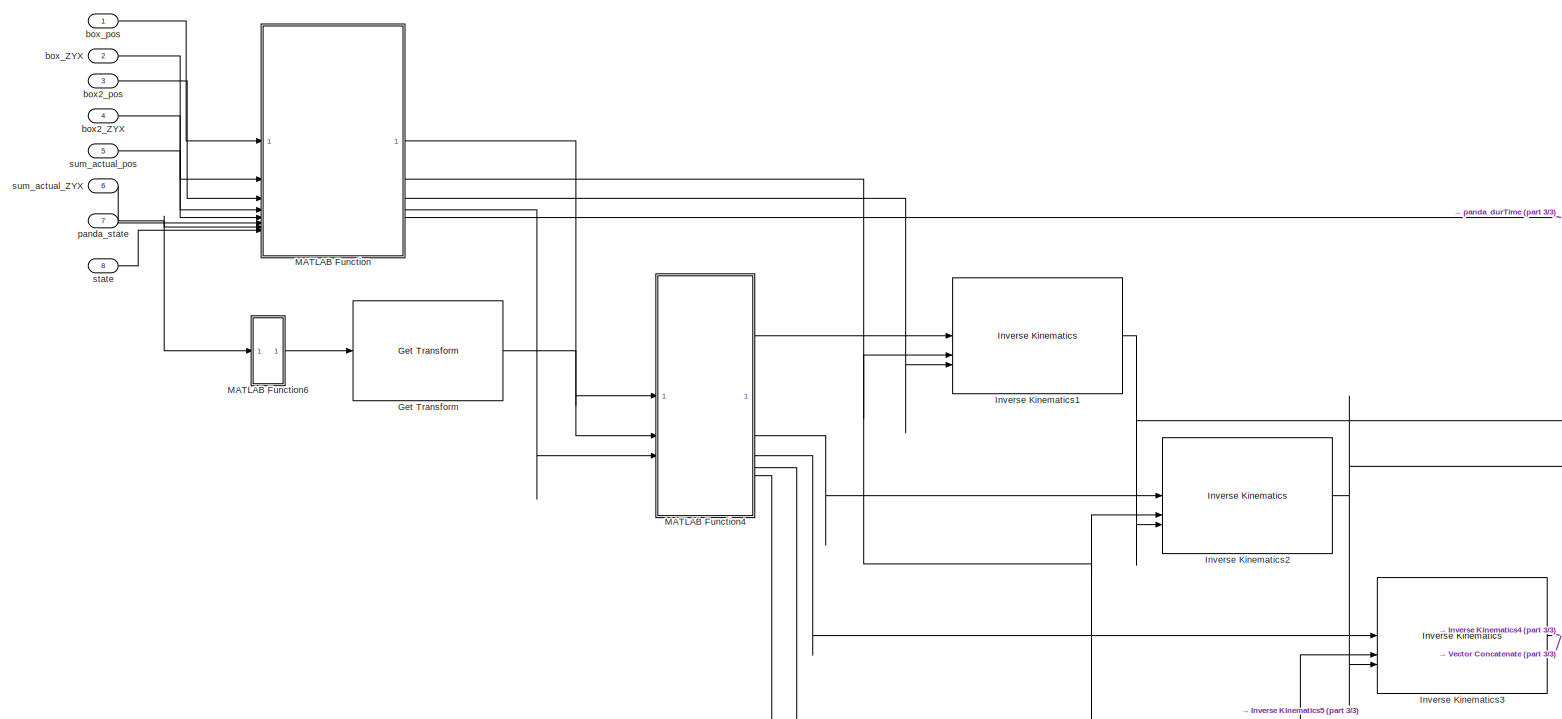
[diagram: General State Flow/get_panda_pose4 - part 2/3, middle left region]
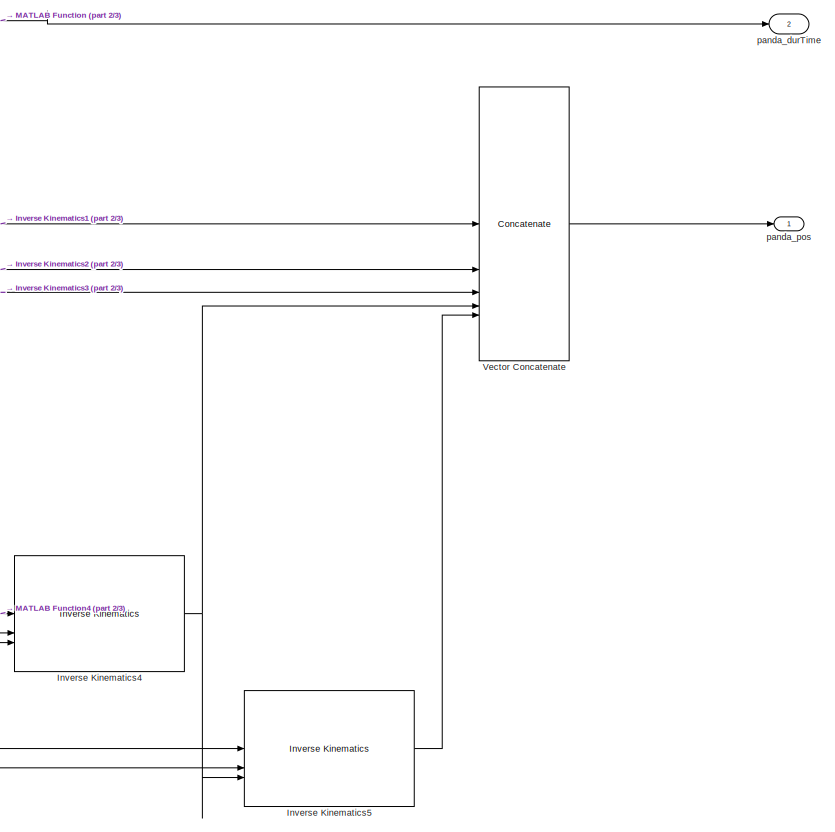
[diagram: General State Flow/get_panda_pose4 - part 3/3, bottom right region]
BLOCK [SubSystem] General State Flow/get_panda_pose4
  PreDeleteFcn = Stateflow.SLINSF.SimulinkMan.removePreDeleteFcn
  UndoDeleteFcn = Stateflow.SLINSF.SimulinkMan.restorePreDeleteFcn
BLOCK [Reference] General State Flow/get_panda_pose4/Get Transform  REF=robotmaniplib/Get Transform
  SourceBlock = robotmaniplib/Get Transform
  SourceType = Get Transform
BLOCK [Reference] General State Flow/get_panda_pose4/Inverse Kinematics1  REF=robotmaniplib/Inverse Kinematics
  SourceBlock = robotmaniplib/Inverse Kinematics
  SourceType = Inverse Kinematics
BLOCK [Reference] General State Flow/get_panda_pose4/Inverse Kinematics2  REF=robotmaniplib/Inverse Kinematics
  SourceBlock = robotmaniplib/Inverse Kinematics
  SourceType = Inverse Kinematics
BLOCK [Reference] General State Flow/get_panda_pose4/Inverse Kinematics3  REF=robotmaniplib/Inverse Kinematics
  SourceBlock = robotmaniplib/Inverse Kinematics
  SourceType = Inverse Kinematics
BLOCK [Reference] General State Flow/get_panda_pose4/Inverse Kinematics4  REF=robotmaniplib/Inverse Kinematics
  SourceBlock = robotmaniplib/Inverse Kinematics
  SourceType = Inverse Kinematics
BLOCK [Reference] General State Flow/get_panda_pose4/Inverse Kinematics5  REF=robotmaniplib/Inverse Kinematics
  SourceBlock = robotmaniplib/Inverse Kinematics
  SourceType = Inverse Kinematics
BLOCK [SubSystem] General State Flow/get_panda_pose4/MATLAB Function
  ErrorFcn = Stateflow.Translate.translate
  LibrarySourceBlock = simulink/User-Defined\nFunctions/MATLAB Function
  PermitHierarchicalResolution = ExplicitOnly
  SFBlockType = MATLAB Function
  TreatAsAtomicUnit = on
BLOCK [Demux] General State Flow/get_panda_pose4/MATLAB Function/ Demux 
  Outputs = 1
BLOCK [S-Function] General State Flow/get_panda_pose4/MATLAB Function/ SFunction 
  EnableBusSupport = off
  FunctionName = sf_sfun
  PortCounts = [8 6]
  SFcnIsStateOwnerBlock = off
  SFunctionDeploymentMode = off
  Tag = Stateflow S-Function 50
BLOCK [Terminator] General State Flow/get_panda_pose4/MATLAB Function/ Terminator 
BLOCK [Outport] General State Flow/get_panda_pose4/MATLAB Function/NWayPoints
  Port = 4
BLOCK [Outport] General State Flow/get_panda_pose4/MATLAB Function/Pose
BLOCK [Outport] General State Flow/get_panda_pose4/MATLAB Function/Weights
  Port = 2
BLOCK [Inport] General State Flow/get_panda_pose4/MATLAB Function/boxPos
BLOCK [Inport] General State Flow/get_panda_pose4/MATLAB Function/boxPos2
  Port = 3
BLOCK [Inport] General State Flow/get_panda_pose4/MATLAB Function/boxZYX
  Port = 2
BLOCK [Inport] General State Flow/get_panda_pose4/MATLAB Function/boxZYX2
  Port = 4
BLOCK [Outport] General State Flow/get_panda_pose4/MATLAB Function/durTime
  Port = 5
BLOCK [Outport] General State Flow/get_panda_pose4/MATLAB Function/initialGuess
  Port = 3
BLOCK [Inport] General State Flow/get_panda_pose4/MATLAB Function/panda_state
  Port = 7
BLOCK [Inport] General State Flow/get_panda_pose4/MATLAB Function/state
  Port = 8
BLOCK [Inport] General State Flow/get_panda_pose4/MATLAB Function/sumPos
  Port = 5
BLOCK [Inport] General State Flow/get_panda_pose4/MATLAB Function/sumZYX
  Port = 6
BLOCK [SubSystem] General State Flow/get_panda_pose4/MATLAB Function4
  ErrorFcn = Stateflow.Translate.translate
  LibrarySourceBlock = simulink/User-Defined\nFunctions/MATLAB Function
  PermitHierarchicalResolution = ExplicitOnly
  SFBlockType = MATLAB Function
  TreatAsAtomicUnit = on
BLOCK [Demux] General State Flow/get_panda_pose4/MATLAB Function4/ Demux 
  Outputs = 1
BLOCK [S-Function] General State Flow/get_panda_pose4/MATLAB Function4/ SFunction 
  EnableBusSupport = on
  FunctionName = sf_sfun
  PortCounts = [3 6]
  SFcnIsStateOwnerBlock = off
  SFunctionDeploymentMode = off
  Tag = Stateflow S-Function 51
BLOCK [Terminator] General State Flow/get_panda_pose4/MATLAB Function4/ Terminator 
BLOCK [Inport] General State Flow/get_panda_pose4/MATLAB Function4/NWayPoint
  Port = 3
BLOCK [Outport] General State Flow/get_panda_pose4/MATLAB Function4/Pose1
BLOCK [Outport] General State Flow/get_panda_pose4/MATLAB Function4/Pose2
  Port = 2
BLOCK [Outport] General State Flow/get_panda_pose4/MATLAB Function4/Pose3
  Port = 3
BLOCK [Outport] General State Flow/get_panda_pose4/MATLAB Function4/Pose4
  Port = 4
BLOCK [Outport] General State Flow/get_panda_pose4/MATLAB Function4/Pose5
  Port = 5
BLOCK [Inport] General State Flow/get_panda_pose4/MATLAB Function4/T
  Port = 2
BLOCK [Inport] General State Flow/get_panda_pose4/MATLAB Function4/pose_d
BLOCK [SubSystem] General State Flow/get_panda_pose4/MATLAB Function6
  ErrorFcn = Stateflow.Translate.translate
  LibrarySourceBlock = simulink/User-Defined\nFunctions/MATLAB Function
  PermitHierarchicalResolution = ExplicitOnly
  SFBlockType = MATLAB Function
  TreatAsAtomicUnit = on
BLOCK [Demux] General State Flow/get_panda_pose4/MATLAB Function6/ Demux 
  Outputs = 1
BLOCK [S-Function] General State Flow/get_panda_pose4/MATLAB Function6/ SFunction 
  EnableBusSupport = on
  FunctionName = sf_sfun
  PortCounts = [1 2]
  SFcnIsStateOwnerBlock = off
  SFunctionDeploymentMode = off
  Tag = Stateflow S-Function 52
BLOCK [Terminator] General State Flow/get_panda_pose4/MATLAB Function6/ Terminator 
BLOCK [Inport] General State Flow/get_panda_pose4/MATLAB Function6/u
BLOCK [Outport] General State Flow/get_panda_pose4/MATLAB Function6/y
BLOCK [Concatenate] General State Flow/get_panda_pose4/Vector Concatenate
  ConcatenateDimension = 2
  Mode = Multidimensional array
  NumInputs = 5
BLOCK [Inport] General State Flow/get_panda_pose4/box2_ZYX
  OutDataTypeStr = double
  Port = 4
  PortDimensions = [3,1]
  SignalType = real
  VarSizeSig = No
BLOCK [Inport] General State Flow/get_panda_pose4/box2_pos
  OutDataTypeStr = double
  Port = 3
  PortDimensions = [3,1]
  SignalType = real
  VarSizeSig = No
BLOCK [Inport] General State Flow/get_panda_pose4/box_ZYX
  OutDataTypeStr = double
  Port = 2
  PortDimensions = [3,1]
  SignalType = real
  VarSizeSig = No
BLOCK [Inport] General State Flow/get_panda_pose4/box_pos
  OutDataTypeStr = double
  PortDimensions = [3,1]
  SignalType = real
  VarSizeSig = No
BLOCK [TriggerPort] General State Flow/get_panda_pose4/f
  CopyFcn = Stateflow.SLINSF.SimulinkMan.removeBlockPreDeleteFcn
  PreDeleteFcn = Stateflow.SLINSF.SimulinkMan.unsafePredeleteFcn
  StatesWhenEnabling = held
  TriggerType = function-call
  VariantControl = (inherit)
BLOCK [Outport] General State Flow/get_panda_pose4/panda_durTime
  Port = 2
BLOCK [Outport] General State Flow/get_panda_pose4/panda_pos
BLOCK [Inport] General State Flow/get_panda_pose4/panda_state
  OutDataTypeStr = double
  Port = 7
  PortDimensions = [7,1]
  SignalType = real
  VarSizeSig = No
BLOCK [Inport] General State Flow/get_panda_pose4/state
  OutDataTypeStr = double
  Port = 8
  PortDimensions = 1
  SignalType = real
  VarSizeSig = No
BLOCK [Inport] General State Flow/get_panda_pose4/sum_actual_ZYX
  OutDataTypeStr = double
  Port = 6
  PortDimensions = [3,1]
  SignalType = real
  VarSizeSig = No
BLOCK [Inport] General State Flow/get_panda_pose4/sum_actual_pos
  OutDataTypeStr = double
  Port = 5
  PortDimensions = [3,1]
  SignalType = real
  VarSizeSig = No
BLOCK [SubSystem] General State Flow/get_panda_pose_tra
  PreDeleteFcn = Stateflow.SLINSF.SimulinkMan.removePreDeleteFcn
  UndoDeleteFcn = Stateflow.SLINSF.SimulinkMan.restorePreDeleteFcn
BLOCK [Reference] General State Flow/get_panda_pose_tra/Get Transform  REF=robotmaniplib/Get Transform
  SourceBlock = robotmaniplib/Get Transform
  SourceType = Get Transform
BLOCK [Reference] General State Flow/get_panda_pose_tra/Inverse Kinematics1  REF=robotmaniplib/Inverse Kinematics
  SourceBlock = robotmaniplib/Inverse Kinematics
  SourceType = Inverse Kinematics
BLOCK [Reference] General State Flow/get_panda_pose_tra/Inverse Kinematics2  REF=robotmaniplib/Inverse Kinematics
  SourceBlock = robotmaniplib/Inverse Kinematics
  SourceType = Inverse Kinematics
BLOCK [Reference] General State Flow/get_panda_pose_tra/Inverse Kinematics3  REF=robotmaniplib/Inverse Kinematics
  SourceBlock = robotmaniplib/Inverse Kinematics
  SourceType = Inverse Kinematics
BLOCK [Reference] General State Flow/get_panda_pose_tra/Inverse Kinematics4  REF=robotmaniplib/Inverse Kinematics
  SourceBlock = robotmaniplib/Inverse Kinematics
  SourceType = Inverse Kinematics
BLOCK [Reference] General State Flow/get_panda_pose_tra/Inverse Kinematics5  REF=robotmaniplib/Inverse Kinematics
  SourceBlock = robotmaniplib/Inverse Kinematics
  SourceType = Inverse Kinematics
BLOCK [SubSystem] General State Flow/get_panda_pose_tra/MATLAB Function
  ErrorFcn = Stateflow.Translate.translate
  LibrarySourceBlock = simulink/User-Defined\nFunctions/MATLAB Function
  PermitHierarchicalResolution = ExplicitOnly
  SFBlockType = MATLAB Function
  TreatAsAtomicUnit = on
BLOCK [Demux] General State Flow/get_panda_pose_tra/MATLAB Function/ Demux 
  Outputs = 1
BLOCK [S-Function] General State Flow/get_panda_pose_tra/MATLAB Function/ SFunction 
  EnableBusSupport = off
  FunctionName = sf_sfun
  PortCounts = [7 6]
  SFcnIsStateOwnerBlock = off
  SFunctionDeploymentMode = off
  Tag = Stateflow S-Function 24
BLOCK [Terminator] General State Flow/get_panda_pose_tra/MATLAB Function/ Terminator 
BLOCK [Outport] General State Flow/get_panda_pose_tra/MATLAB Function/NWayPoints
  Port = 4
BLOCK [Outport] General State Flow/get_panda_pose_tra/MATLAB Function/Pose
BLOCK [Outport] General State Flow/get_panda_pose_tra/MATLAB Function/Weights
  Port = 2
BLOCK [Inport] General State Flow/get_panda_pose_tra/MATLAB Function/boxPos
BLOCK [Inport] General State Flow/get_panda_pose_tra/MATLAB Function/boxZYX
  Port = 2
BLOCK [Inport] General State Flow/get_panda_pose_tra/MATLAB Function/data
  Port = 6
BLOCK [Outport] General State Flow/get_panda_pose_tra/MATLAB Function/durTime
  Port = 5
BLOCK [Outport] General State Flow/get_panda_pose_tra/MATLAB Function/initialGuess
  Port = 3
BLOCK [Inport] General State Flow/get_panda_pose_tra/MATLAB Function/panda_state
  Port = 5
BLOCK [Inport] General State Flow/get_panda_pose_tra/MATLAB Function/state
  Port = 7
BLOCK [Inport] General State Flow/get_panda_pose_tra/MATLAB Function/sumPos
  Port = 3
BLOCK [Inport] General State Flow/get_panda_pose_tra/MATLAB Function/sumZYX
  Port = 4
BLOCK [SubSystem] General State Flow/get_panda_pose_tra/MATLAB Function4
  ErrorFcn = Stateflow.Translate.translate
  LibrarySourceBlock = simulink/User-Defined\nFunctions/MATLAB Function
  PermitHierarchicalResolution = ExplicitOnly
  SFBlockType = MATLAB Function
  TreatAsAtomicUnit = on
BLOCK [Demux] General State Flow/get_panda_pose_tra/MATLAB Function4/ Demux 
  Outputs = 1
BLOCK [S-Function] General State Flow/get_panda_pose_tra/MATLAB Function4/ SFunction 
  EnableBusSupport = on
  FunctionName = sf_sfun
  PortCounts = [3 6]
  SFcnIsStateOwnerBlock = off
  SFunctionDeploymentMode = off
  Tag = Stateflow S-Function 31
BLOCK [Terminator] General State Flow/get_panda_pose_tra/MATLAB Function4/ Terminator 
BLOCK [Inport] General State Flow/get_panda_pose_tra/MATLAB Function4/NWayPoint
  Port = 3
BLOCK [Outport] General State Flow/get_panda_pose_tra/MATLAB Function4/Pose1
BLOCK [Outport] General State Flow/get_panda_pose_tra/MATLAB Function4/Pose2
  Port = 2
BLOCK [Outport] General State Flow/get_panda_pose_tra/MATLAB Function4/Pose3
  Port = 3
BLOCK [Outport] General State Flow/get_panda_pose_tra/MATLAB Function4/Pose4
  Port = 4
BLOCK [Outport] General State Flow/get_panda_pose_tra/MATLAB Function4/Pose5
  Port = 5
BLOCK [Inport] General State Flow/get_panda_pose_tra/MATLAB Function4/T
  Port = 2
BLOCK [Inport] General State Flow/get_panda_pose_tra/MATLAB Function4/pose_d
BLOCK [SubSystem] General State Flow/get_panda_pose_tra/MATLAB Function6
  ErrorFcn = Stateflow.Translate.translate
  LibrarySourceBlock = simulink/User-Defined\nFunctions/MATLAB Function
  PermitHierarchicalResolution = ExplicitOnly
  SFBlockType = MATLAB Function
  TreatAsAtomicUnit = on
BLOCK [Demux] General State Flow/get_panda_pose_tra/MATLAB Function6/ Demux 
  Outputs = 1
BLOCK [S-Function] General State Flow/get_panda_pose_tra/MATLAB Function6/ SFunction 
  EnableBusSupport = on
  FunctionName = sf_sfun
  PortCounts = [1 2]
  SFcnIsStateOwnerBlock = off
  SFunctionDeploymentMode = off
  Tag = Stateflow S-Function 32
BLOCK [Terminator] General State Flow/get_panda_pose_tra/MATLAB Function6/ Terminator 
BLOCK [Inport] General State Flow/get_panda_pose_tra/MATLAB Function6/u
BLOCK [Outport] General State Flow/get_panda_pose_tra/MATLAB Function6/y
BLOCK [Concatenate] General State Flow/get_panda_pose_tra/Vector Concatenate
  ConcatenateDimension = 2
  Mode = Multidimensional array
  NumInputs = 5
BLOCK [Outport] General State Flow/get_panda_pose_tra/durTime_panda
  Port = 2
BLOCK [TriggerPort] General State Flow/get_panda_pose_tra/f
  CopyFcn = Stateflow.SLINSF.SimulinkMan.removeBlockPreDeleteFcn
  PreDeleteFcn = Stateflow.SLINSF.SimulinkMan.unsafePredeleteFcn
  StatesWhenEnabling = held
  TriggerType = function-call
  VariantControl = (inherit)
BLOCK [Outport] General State Flow/get_panda_pose_tra/panda_pos
BLOCK [Inport] General State Flow/get_panda_pose_tra/panda_state
  OutDataTypeStr = double
  Port = 5
  PortDimensions = [7,1]
  SignalType = real
  VarSizeSig = No
BLOCK [Inport] General State Flow/get_panda_pose_tra/state
  OutDataTypeStr = double
  Port = 6
  PortDimensions = 1
  SignalType = real
  VarSizeSig = No
BLOCK [Inport] General State Flow/get_panda_pose_tra/sum_actual_ZYX
  OutDataTypeStr = double
  Port = 4
  PortDimensions = [3,1]
  SignalType = real
  VarSizeSig = No
BLOCK [Inport] General State Flow/get_panda_pose_tra/sum_actual_pos
  OutDataTypeStr = double
  Port = 3
  PortDimensions = [3,1]
  SignalType = real
  VarSizeSig = No
BLOCK [Inport] General State Flow/get_panda_pose_tra/tra_ZYX
  OutDataTypeStr = double
  Port = 2
  PortDimensions = [3,1]
  SignalType = real
  VarSizeSig = No
BLOCK [Inport] General State Flow/get_panda_pose_tra/tra_pos
  OutDataTypeStr = double
  PortDimensions = [3,1]
  SignalType = real
  VarSizeSig = No
BLOCK [SubSystem] General State Flow/get_ur_pose
  PreDeleteFcn = Stateflow.SLINSF.SimulinkMan.removePreDeleteFcn
  UndoDeleteFcn = Stateflow.SLINSF.SimulinkMan.restorePreDeleteFcn
BLOCK [Reference] General State Flow/get_ur_pose/Get Transform  REF=robotmaniplib/Get Transform
  SourceBlock = robotmaniplib/Get Transform
  SourceType = Get Transform
BLOCK [Reference] General State Flow/get_ur_pose/Inverse Kinematics  REF=robotmaniplib/Inverse Kinematics
  SourceBlock = robotmaniplib/Inverse Kinematics
  SourceType = Inverse Kinematics
BLOCK [Reference] General State Flow/get_ur_pose/Inverse Kinematics1  REF=robotmaniplib/Inverse Kinematics
  SourceBlock = robotmaniplib/Inverse Kinematics
  SourceType = Inverse Kinematics
BLOCK [Reference] General State Flow/get_ur_pose/Inverse Kinematics2  REF=robotmaniplib/Inverse Kinematics
  SourceBlock = robotmaniplib/Inverse Kinematics
  SourceType = Inverse Kinematics
BLOCK [Reference] General State Flow/get_ur_pose/Inverse Kinematics3  REF=robotmaniplib/Inverse Kinematics
  SourceBlock = robotmaniplib/Inverse Kinematics
  SourceType = Inverse Kinematics
BLOCK [Reference] General State Flow/get_ur_pose/Inverse Kinematics4  REF=robotmaniplib/Inverse Kinematics
  SourceBlock = robotmaniplib/Inverse Kinematics
  SourceType = Inverse Kinematics
BLOCK [SubSystem] General State Flow/get_ur_pose/MATLAB Function
  ErrorFcn = Stateflow.Translate.translate
  LibrarySourceBlock = simulink/User-Defined\nFunctions/MATLAB Function
  PermitHierarchicalResolution = ExplicitOnly
  SFBlockType = MATLAB Function
  TreatAsAtomicUnit = on
BLOCK [Demux] General State Flow/get_ur_pose/MATLAB Function/ Demux 
  Outputs = 1
BLOCK [S-Function] General State Flow/get_ur_pose/MATLAB Function/ SFunction 
  EnableBusSupport = off
  FunctionName = sf_sfun
  PortCounts = [6 6]
  SFcnIsStateOwnerBlock = off
  SFunctionDeploymentMode = off
  Tag = Stateflow S-Function 10
BLOCK [Terminator] General State Flow/get_ur_pose/MATLAB Function/ Terminator 
BLOCK [Outport] General State Flow/get_ur_pose/MATLAB Function/NWayPoints
  Port = 4
BLOCK [Outport] General State Flow/get_ur_pose/MATLAB Function/Pose
BLOCK [Outport] General State Flow/get_ur_pose/MATLAB Function/Weights
  Port = 2
BLOCK [Inport] General State Flow/get_ur_pose/MATLAB Function/boxPos
BLOCK [Inport] General State Flow/get_ur_pose/MATLAB Function/boxZYX
  Port = 2
BLOCK [Outport] General State Flow/get_ur_pose/MATLAB Function/durTime
  Port = 5
BLOCK [Outport] General State Flow/get_ur_pose/MATLAB Function/initialGuess
  Port = 3
BLOCK [Inport] General State Flow/get_ur_pose/MATLAB Function/state
  Port = 6
BLOCK [Inport] General State Flow/get_ur_pose/MATLAB Function/sumPos
  Port = 3
BLOCK [Inport] General State Flow/get_ur_pose/MATLAB Function/sumZYX
  Port = 4
BLOCK [Inport] General State Flow/get_ur_pose/MATLAB Function/urState
  Port = 5
BLOCK [SubSystem] General State Flow/get_ur_pose/MATLAB Function4
  ErrorFcn = Stateflow.Translate.translate
  LibrarySourceBlock = simulink/User-Defined\nFunctions/MATLAB Function
  PermitHierarchicalResolution = ExplicitOnly
  SFBlockType = MATLAB Function
  TreatAsAtomicUnit = on
BLOCK [Demux] General State Flow/get_ur_pose/MATLAB Function4/ Demux 
  Outputs = 1
BLOCK [S-Function] General State Flow/get_ur_pose/MATLAB Function4/ SFunction 
  EnableBusSupport = on
  FunctionName = sf_sfun
  PortCounts = [3 6]
  SFcnIsStateOwnerBlock = off
  SFunctionDeploymentMode = off
  Tag = Stateflow S-Function 28
BLOCK [Terminator] General State Flow/get_ur_pose/MATLAB Function4/ Terminator 
BLOCK [Inport] General State Flow/get_ur_pose/MATLAB Function4/NWayPoint
  Port = 3
BLOCK [Outport] General State Flow/get_ur_pose/MATLAB Function4/Pose1
BLOCK [Outport] General State Flow/get_ur_pose/MATLAB Function4/Pose2
  Port = 2
BLOCK [Outport] General State Flow/get_ur_pose/MATLAB Function4/Pose3
  Port = 3
BLOCK [Outport] General State Flow/get_ur_pose/MATLAB Function4/Pose4
  Port = 4
BLOCK [Outport] General State Flow/get_ur_pose/MATLAB Function4/Pose5
  Port = 5
BLOCK [Inport] General State Flow/get_ur_pose/MATLAB Function4/T
  Port = 2
BLOCK [Inport] General State Flow/get_ur_pose/MATLAB Function4/pose_d
BLOCK [SubSystem] General State Flow/get_ur_pose/MATLAB Function6
  ErrorFcn = Stateflow.Translate.translate
  LibrarySourceBlock = simulink/User-Defined\nFunctions/MATLAB Function
  PermitHierarchicalResolution = ExplicitOnly
  SFBlockType = MATLAB Function
  TreatAsAtomicUnit = on
BLOCK [Demux] General State Flow/get_ur_pose/MATLAB Function6/ Demux 
  Outputs = 1
BLOCK [S-Function] General State Flow/get_ur_pose/MATLAB Function6/ SFunction 
  EnableBusSupport = on
  FunctionName = sf_sfun
  PortCounts = [1 2]
  SFcnIsStateOwnerBlock = off
  SFunctionDeploymentMode = off
  Tag = Stateflow S-Function 29
BLOCK [Terminator] General State Flow/get_ur_pose/MATLAB Function6/ Terminator 
BLOCK [Inport] General State Flow/get_ur_pose/MATLAB Function6/u
BLOCK [Outport] General State Flow/get_ur_pose/MATLAB Function6/y
BLOCK [Concatenate] General State Flow/get_ur_pose/Vector Concatenate
  ConcatenateDimension = 2
  Mode = Multidimensional array
  NumInputs = 5
BLOCK [Inport] General State Flow/get_ur_pose/box_ZYX
  OutDataTypeStr = double
  Port = 2
  PortDimensions = [3,1]
  SignalType = real
  VarSizeSig = No
BLOCK [Inport] General State Flow/get_ur_pose/box_pose
  OutDataTypeStr = double
  PortDimensions = [3,1]
  SignalType = real
  VarSizeSig = No
BLOCK [Outport] General State Flow/get_ur_pose/durTime_ur
  Port = 2
BLOCK [TriggerPort] General State Flow/get_ur_pose/f
  CopyFcn = Stateflow.SLINSF.SimulinkMan.removeBlockPreDeleteFcn
  PreDeleteFcn = Stateflow.SLINSF.SimulinkMan.unsafePredeleteFcn
  StatesWhenEnabling = held
  TriggerType = function-call
  VariantControl = (inherit)
BLOCK [Inport] General State Flow/get_ur_pose/state
  OutDataTypeStr = double
  Port = 6
  PortDimensions = 1
  SignalType = real
  VarSizeSig = No
BLOCK [Inport] General State Flow/get_ur_pose/sum_actual_ZYX
  OutDataTypeStr = double
  Port = 4
  PortDimensions = [3,1]
  SignalType = real
  VarSizeSig = No
BLOCK [Inport] General State Flow/get_ur_pose/sum_actual_pos
  OutDataTypeStr = double
  Port = 3
  PortDimensions = [3,1]
  SignalType = real
  VarSizeSig = No
BLOCK [Outport] General State Flow/get_ur_pose/ur_pos
BLOCK [Inport] General State Flow/get_ur_pose/ur_state
  OutDataTypeStr = double
  Port = 5
  PortDimensions = [7,1]
  SignalType = real
  VarSizeSig = No
BLOCK [SubSystem] General State Flow/get_ur_pose2
  PreDeleteFcn = Stateflow.SLINSF.SimulinkMan.removePreDeleteFcn
  UndoDeleteFcn = Stateflow.SLINSF.SimulinkMan.restorePreDeleteFcn
BLOCK [Reference] General State Flow/get_ur_pose2/Get Transform  REF=robotmaniplib/Get Transform
  SourceBlock = robotmaniplib/Get Transform
  SourceType = Get Transform
BLOCK [Reference] General State Flow/get_ur_pose2/Inverse Kinematics  REF=robotmaniplib/Inverse Kinematics
  SourceBlock = robotmaniplib/Inverse Kinematics
  SourceType = Inverse Kinematics
BLOCK [Reference] General State Flow/get_ur_pose2/Inverse Kinematics1  REF=robotmaniplib/Inverse Kinematics
  SourceBlock = robotmaniplib/Inverse Kinematics
  SourceType = Inverse Kinematics
BLOCK [Reference] General State Flow/get_ur_pose2/Inverse Kinematics2  REF=robotmaniplib/Inverse Kinematics
  SourceBlock = robotmaniplib/Inverse Kinematics
  SourceType = Inverse Kinematics
BLOCK [Reference] General State Flow/get_ur_pose2/Inverse Kinematics3  REF=robotmaniplib/Inverse Kinematics
  SourceBlock = robotmaniplib/Inverse Kinematics
  SourceType = Inverse Kinematics
BLOCK [Reference] General State Flow/get_ur_pose2/Inverse Kinematics4  REF=robotmaniplib/Inverse Kinematics
  SourceBlock = robotmaniplib/Inverse Kinematics
  SourceType = Inverse Kinematics
BLOCK [SubSystem] General State Flow/get_ur_pose2/MATLAB Function
  ErrorFcn = Stateflow.Translate.translate
  LibrarySourceBlock = simulink/User-Defined\nFunctions/MATLAB Function
  PermitHierarchicalResolution = ExplicitOnly
  SFBlockType = MATLAB Function
  TreatAsAtomicUnit = on
BLOCK [Demux] General State Flow/get_ur_pose2/MATLAB Function/ Demux 
  Outputs = 1
BLOCK [S-Function] General State Flow/get_ur_pose2/MATLAB Function/ SFunction 
  EnableBusSupport = off
  FunctionName = sf_sfun
  PortCounts = [7 6]
  SFcnIsStateOwnerBlock = off
  SFunctionDeploymentMode = off
  Tag = Stateflow S-Function 39
BLOCK [Terminator] General State Flow/get_ur_pose2/MATLAB Function/ Terminator 
BLOCK [Outport] General State Flow/get_ur_pose2/MATLAB Function/NWayPoints
  Port = 4
BLOCK [Outport] General State Flow/get_ur_pose2/MATLAB Function/Pose
BLOCK [Inport] General State Flow/get_ur_pose2/MATLAB Function/T
  Port = 7
BLOCK [Outport] General State Flow/get_ur_pose2/MATLAB Function/Weights
  Port = 2
BLOCK [Inport] General State Flow/get_ur_pose2/MATLAB Function/boxPos
BLOCK [Inport] General State Flow/get_ur_pose2/MATLAB Function/boxZYX
  Port = 2
BLOCK [Outport] General State Flow/get_ur_pose2/MATLAB Function/durTime
  Port = 5
BLOCK [Outport] General State Flow/get_ur_pose2/MATLAB Function/initialGuess
  Port = 3
BLOCK [Inport] General State Flow/get_ur_pose2/MATLAB Function/state
  Port = 6
BLOCK [Inport] General State Flow/get_ur_pose2/MATLAB Function/sumPos
  Port = 3
BLOCK [Inport] General State Flow/get_ur_pose2/MATLAB Function/sumZYX
  Port = 4
BLOCK [Inport] General State Flow/get_ur_pose2/MATLAB Function/urState
  Port = 5
BLOCK [SubSystem] General State Flow/get_ur_pose2/MATLAB Function4
  ErrorFcn = Stateflow.Translate.translate
  LibrarySourceBlock = simulink/User-Defined\nFunctions/MATLAB Function
  PermitHierarchicalResolution = ExplicitOnly
  SFBlockType = MATLAB Function
  TreatAsAtomicUnit = on
BLOCK [Demux] General State Flow/get_ur_pose2/MATLAB Function4/ Demux 
  Outputs = 1
BLOCK [S-Function] General State Flow/get_ur_pose2/MATLAB Function4/ SFunction 
  EnableBusSupport = on
  FunctionName = sf_sfun
  PortCounts = [3 6]
  SFcnIsStateOwnerBlock = off
  SFunctionDeploymentMode = off
  Tag = Stateflow S-Function 40
BLOCK [Terminator] General State Flow/get_ur_pose2/MATLAB Function4/ Terminator 
BLOCK [Inport] General State Flow/get_ur_pose2/MATLAB Function4/NWayPoint
  Port = 3
BLOCK [Outport] General State Flow/get_ur_pose2/MATLAB Function4/Pose1
BLOCK [Outport] General State Flow/get_ur_pose2/MATLAB Function4/Pose2
  Port = 2
BLOCK [Outport] General State Flow/get_ur_pose2/MATLAB Function4/Pose3
  Port = 3
BLOCK [Outport] General State Flow/get_ur_pose2/MATLAB Function4/Pose4
  Port = 4
BLOCK [Outport] General State Flow/get_ur_pose2/MATLAB Function4/Pose5
  Port = 5
BLOCK [Inport] General State Flow/get_ur_pose2/MATLAB Function4/T
  Port = 2
BLOCK [Inport] General State Flow/get_ur_pose2/MATLAB Function4/pose_d
BLOCK [SubSystem] General State Flow/get_ur_pose2/MATLAB Function6
  ErrorFcn = Stateflow.Translate.translate
  LibrarySourceBlock = simulink/User-Defined\nFunctions/MATLAB Function
  PermitHierarchicalResolution = ExplicitOnly
  SFBlockType = MATLAB Function
  TreatAsAtomicUnit = on
BLOCK [Demux] General State Flow/get_ur_pose2/MATLAB Function6/ Demux 
  Outputs = 1
BLOCK [S-Function] General State Flow/get_ur_pose2/MATLAB Function6/ SFunction 
  EnableBusSupport = on
  FunctionName = sf_sfun
  PortCounts = [1 2]
  SFcnIsStateOwnerBlock = off
  SFunctionDeploymentMode = off
  Tag = Stateflow S-Function 41
BLOCK [Terminator] General State Flow/get_ur_pose2/MATLAB Function6/ Terminator 
BLOCK [Inport] General State Flow/get_ur_pose2/MATLAB Function6/u
BLOCK [Outport] General State Flow/get_ur_pose2/MATLAB Function6/y
BLOCK [Concatenate] General State Flow/get_ur_pose2/Vector Concatenate
  ConcatenateDimension = 2
  Mode = Multidimensional array
  NumInputs = 5
BLOCK [Inport] General State Flow/get_ur_pose2/box_ZYX
  OutDataTypeStr = double
  Port = 2
  PortDimensions = [3,1]
  SignalType = real
  VarSizeSig = No
BLOCK [Inport] General State Flow/get_ur_pose2/box_pose
  OutDataTypeStr = double
  PortDimensions = [3,1]
  SignalType = real
  VarSizeSig = No
BLOCK [Outport] General State Flow/get_ur_pose2/durTime_ur
  Port = 2
BLOCK [TriggerPort] General State Flow/get_ur_pose2/f
  CopyFcn = Stateflow.SLINSF.SimulinkMan.removeBlockPreDeleteFcn
  PreDeleteFcn = Stateflow.SLINSF.SimulinkMan.unsafePredeleteFcn
  StatesWhenEnabling = held
  TriggerType = function-call
  VariantControl = (inherit)
BLOCK [Inport] General State Flow/get_ur_pose2/state
  OutDataTypeStr = double
  Port = 6
  PortDimensions = 1
  SignalType = real
  VarSizeSig = No
BLOCK [Inport] General State Flow/get_ur_pose2/sum_actual_ZYX
  OutDataTypeStr = double
  Port = 4
  PortDimensions = [3,1]
  SignalType = real
  VarSizeSig = No
BLOCK [Inport] General State Flow/get_ur_pose2/sum_actual_pos
  OutDataTypeStr = double
  Port = 3
  PortDimensions = [3,1]
  SignalType = real
  VarSizeSig = No
BLOCK [Outport] General State Flow/get_ur_pose2/ur_pos
BLOCK [Inport] General State Flow/get_ur_pose2/ur_state
  OutDataTypeStr = double
  Port = 5
  PortDimensions = [7,1]
  SignalType = real
  VarSizeSig = No
BLOCK [SubSystem] General State Flow/get_ur_pose3
  PreDeleteFcn = Stateflow.SLINSF.SimulinkMan.removePreDeleteFcn
  UndoDeleteFcn = Stateflow.SLINSF.SimulinkMan.restorePreDeleteFcn
BLOCK [Reference] General State Flow/get_ur_pose3/Get Transform  REF=robotmaniplib/Get Transform
  SourceBlock = robotmaniplib/Get Transform
  SourceType = Get Transform
BLOCK [Reference] General State Flow/get_ur_pose3/Inverse Kinematics  REF=robotmaniplib/Inverse Kinematics
  SourceBlock = robotmaniplib/Inverse Kinematics
  SourceType = Inverse Kinematics
BLOCK [Reference] General State Flow/get_ur_pose3/Inverse Kinematics1  REF=robotmaniplib/Inverse Kinematics
  SourceBlock = robotmaniplib/Inverse Kinematics
  SourceType = Inverse Kinematics
BLOCK [Reference] General State Flow/get_ur_pose3/Inverse Kinematics2  REF=robotmaniplib/Inverse Kinematics
  SourceBlock = robotmaniplib/Inverse Kinematics
  SourceType = Inverse Kinematics
BLOCK [Reference] General State Flow/get_ur_pose3/Inverse Kinematics3  REF=robotmaniplib/Inverse Kinematics
  SourceBlock = robotmaniplib/Inverse Kinematics
  SourceType = Inverse Kinematics
BLOCK [Reference] General State Flow/get_ur_pose3/Inverse Kinematics4  REF=robotmaniplib/Inverse Kinematics
  SourceBlock = robotmaniplib/Inverse Kinematics
  SourceType = Inverse Kinematics
BLOCK [SubSystem] General State Flow/get_ur_pose3/MATLAB Function
  ErrorFcn = Stateflow.Translate.translate
  LibrarySourceBlock = simulink/User-Defined\nFunctions/MATLAB Function
  PermitHierarchicalResolution = ExplicitOnly
  SFBlockType = MATLAB Function
  TreatAsAtomicUnit = on
BLOCK [Demux] General State Flow/get_ur_pose3/MATLAB Function/ Demux 
  Outputs = 1
BLOCK [S-Function] General State Flow/get_ur_pose3/MATLAB Function/ SFunction 
  EnableBusSupport = off
  FunctionName = sf_sfun
  PortCounts = [7 6]
  SFcnIsStateOwnerBlock = off
  SFunctionDeploymentMode = off
  Tag = Stateflow S-Function 42
BLOCK [Terminator] General State Flow/get_ur_pose3/MATLAB Function/ Terminator 
BLOCK [Outport] General State Flow/get_ur_pose3/MATLAB Function/NWayPoints
  Port = 4
BLOCK [Outport] General State Flow/get_ur_pose3/MATLAB Function/Pose
BLOCK [Inport] General State Flow/get_ur_pose3/MATLAB Function/T
  Port = 7
BLOCK [Outport] General State Flow/get_ur_pose3/MATLAB Function/Weights
  Port = 2
BLOCK [Inport] General State Flow/get_ur_pose3/MATLAB Function/boxPos
BLOCK [Inport] General State Flow/get_ur_pose3/MATLAB Function/boxZYX
  Port = 2
BLOCK [Outport] General State Flow/get_ur_pose3/MATLAB Function/durTime
  Port = 5
BLOCK [Outport] General State Flow/get_ur_pose3/MATLAB Function/initialGuess
  Port = 3
BLOCK [Inport] General State Flow/get_ur_pose3/MATLAB Function/state
  Port = 6
BLOCK [Inport] General State Flow/get_ur_pose3/MATLAB Function/sumPos
  Port = 3
BLOCK [Inport] General State Flow/get_ur_pose3/MATLAB Function/sumZYX
  Port = 4
BLOCK [Inport] General State Flow/get_ur_pose3/MATLAB Function/urState
  Port = 5
BLOCK [SubSystem] General State Flow/get_ur_pose3/MATLAB Function4
  ErrorFcn = Stateflow.Translate.translate
  LibrarySourceBlock = simulink/User-Defined\nFunctions/MATLAB Function
  PermitHierarchicalResolution = ExplicitOnly
  SFBlockType = MATLAB Function
  TreatAsAtomicUnit = on
BLOCK [Demux] General State Flow/get_ur_pose3/MATLAB Function4/ Demux 
  Outputs = 1
BLOCK [S-Function] General State Flow/get_ur_pose3/MATLAB Function4/ SFunction 
  EnableBusSupport = on
  FunctionName = sf_sfun
  PortCounts = [3 6]
  SFcnIsStateOwnerBlock = off
  SFunctionDeploymentMode = off
  Tag = Stateflow S-Function 43
BLOCK [Terminator] General State Flow/get_ur_pose3/MATLAB Function4/ Terminator 
BLOCK [Inport] General State Flow/get_ur_pose3/MATLAB Function4/NWayPoint
  Port = 3
BLOCK [Outport] General State Flow/get_ur_pose3/MATLAB Function4/Pose1
BLOCK [Outport] General State Flow/get_ur_pose3/MATLAB Function4/Pose2
  Port = 2
BLOCK [Outport] General State Flow/get_ur_pose3/MATLAB Function4/Pose3
  Port = 3
BLOCK [Outport] General State Flow/get_ur_pose3/MATLAB Function4/Pose4
  Port = 4
BLOCK [Outport] General State Flow/get_ur_pose3/MATLAB Function4/Pose5
  Port = 5
BLOCK [Inport] General State Flow/get_ur_pose3/MATLAB Function4/T
  Port = 2
BLOCK [Inport] General State Flow/get_ur_pose3/MATLAB Function4/pose_d
BLOCK [SubSystem] General State Flow/get_ur_pose3/MATLAB Function6
  ErrorFcn = Stateflow.Translate.translate
  LibrarySourceBlock = simulink/User-Defined\nFunctions/MATLAB Function
  PermitHierarchicalResolution = ExplicitOnly
  SFBlockType = MATLAB Function
  TreatAsAtomicUnit = on
BLOCK [Demux] General State Flow/get_ur_pose3/MATLAB Function6/ Demux 
  Outputs = 1
BLOCK [S-Function] General State Flow/get_ur_pose3/MATLAB Function6/ SFunction 
  EnableBusSupport = on
  FunctionName = sf_sfun
  PortCounts = [1 2]
  SFcnIsStateOwnerBlock = off
  SFunctionDeploymentMode = off
  Tag = Stateflow S-Function 44
BLOCK [Terminator] General State Flow/get_ur_pose3/MATLAB Function6/ Terminator 
BLOCK [Inport] General State Flow/get_ur_pose3/MATLAB Function6/u
BLOCK [Outport] General State Flow/get_ur_pose3/MATLAB Function6/y
BLOCK [Concatenate] General State Flow/get_ur_pose3/Vector Concatenate
  ConcatenateDimension = 2
  Mode = Multidimensional array
  NumInputs = 5
BLOCK [Inport] General State Flow/get_ur_pose3/box_ZYX
  OutDataTypeStr = double
  Port = 2
  PortDimensions = [3,1]
  SignalType = real
  VarSizeSig = No
BLOCK [Inport] General State Flow/get_ur_pose3/box_pose
  OutDataTypeStr = double
  PortDimensions = [3,1]
  SignalType = real
  VarSizeSig = No
BLOCK [Outport] General State Flow/get_ur_pose3/durTime_ur
  Port = 2
BLOCK [TriggerPort] General State Flow/get_ur_pose3/f
  CopyFcn = Stateflow.SLINSF.SimulinkMan.removeBlockPreDeleteFcn
  PreDeleteFcn = Stateflow.SLINSF.SimulinkMan.unsafePredeleteFcn
  StatesWhenEnabling = held
  TriggerType = function-call
  VariantControl = (inherit)
BLOCK [Inport] General State Flow/get_ur_pose3/state
  OutDataTypeStr = double
  Port = 6
  PortDimensions = 1
  SignalType = real
  VarSizeSig = No
BLOCK [Inport] General State Flow/get_ur_pose3/sum_actual_ZYX
  OutDataTypeStr = double
  Port = 4
  PortDimensions = [3,1]
  SignalType = real
  VarSizeSig = No
BLOCK [Inport] General State Flow/get_ur_pose3/sum_actual_pos
  OutDataTypeStr = double
  Port = 3
  PortDimensions = [3,1]
  SignalType = real
  VarSizeSig = No
BLOCK [Outport] General State Flow/get_ur_pose3/ur_pos
BLOCK [Inport] General State Flow/get_ur_pose3/ur_state
  OutDataTypeStr = double
  Port = 5
  PortDimensions = [7,1]
  SignalType = real
  VarSizeSig = No
BLOCK [SubSystem] General State Flow/get_ur_pose4
  PreDeleteFcn = Stateflow.SLINSF.SimulinkMan.removePreDeleteFcn
  UndoDeleteFcn = Stateflow.SLINSF.SimulinkMan.restorePreDeleteFcn
BLOCK [Reference] General State Flow/get_ur_pose4/Get Transform  REF=robotmaniplib/Get Transform
  SourceBlock = robotmaniplib/Get Transform
  SourceType = Get Transform
BLOCK [Reference] General State Flow/get_ur_pose4/Inverse Kinematics  REF=robotmaniplib/Inverse Kinematics
  SourceBlock = robotmaniplib/Inverse Kinematics
  SourceType = Inverse Kinematics
BLOCK [Reference] General State Flow/get_ur_pose4/Inverse Kinematics1  REF=robotmaniplib/Inverse Kinematics
  SourceBlock = robotmaniplib/Inverse Kinematics
  SourceType = Inverse Kinematics
BLOCK [Reference] General State Flow/get_ur_pose4/Inverse Kinematics2  REF=robotmaniplib/Inverse Kinematics
  SourceBlock = robotmaniplib/Inverse Kinematics
  SourceType = Inverse Kinematics
BLOCK [Reference] General State Flow/get_ur_pose4/Inverse Kinematics3  REF=robotmaniplib/Inverse Kinematics
  SourceBlock = robotmaniplib/Inverse Kinematics
  SourceType = Inverse Kinematics
BLOCK [Reference] General State Flow/get_ur_pose4/Inverse Kinematics4  REF=robotmaniplib/Inverse Kinematics
  SourceBlock = robotmaniplib/Inverse Kinematics
  SourceType = Inverse Kinematics
BLOCK [SubSystem] General State Flow/get_ur_pose4/MATLAB Function
  ErrorFcn = Stateflow.Translate.translate
  LibrarySourceBlock = simulink/User-Defined\nFunctions/MATLAB Function
  PermitHierarchicalResolution = ExplicitOnly
  SFBlockType = MATLAB Function
  TreatAsAtomicUnit = on
BLOCK [Demux] General State Flow/get_ur_pose4/MATLAB Function/ Demux 
  Outputs = 1
BLOCK [S-Function] General State Flow/get_ur_pose4/MATLAB Function/ SFunction 
  EnableBusSupport = off
  FunctionName = sf_sfun
  PortCounts = [8 6]
  SFcnIsStateOwnerBlock = off
  SFunctionDeploymentMode = off
  Tag = Stateflow S-Function 46
BLOCK [Terminator] General State Flow/get_ur_pose4/MATLAB Function/ Terminator 
BLOCK [Outport] General State Flow/get_ur_pose4/MATLAB Function/NWayPoints
  Port = 4
BLOCK [Outport] General State Flow/get_ur_pose4/MATLAB Function/Pose
BLOCK [Outport] General State Flow/get_ur_pose4/MATLAB Function/Weights
  Port = 2
BLOCK [Inport] General State Flow/get_ur_pose4/MATLAB Function/boxPos
BLOCK [Inport] General State Flow/get_ur_pose4/MATLAB Function/boxPos2
  Port = 3
BLOCK [Inport] General State Flow/get_ur_pose4/MATLAB Function/boxZYX
  Port = 2
BLOCK [Inport] General State Flow/get_ur_pose4/MATLAB Function/boxZYX2
  Port = 4
BLOCK [Outport] General State Flow/get_ur_pose4/MATLAB Function/durTime
  Port = 5
BLOCK [Outport] General State Flow/get_ur_pose4/MATLAB Function/initialGuess
  Port = 3
BLOCK [Inport] General State Flow/get_ur_pose4/MATLAB Function/state
  Port = 8
BLOCK [Inport] General State Flow/get_ur_pose4/MATLAB Function/sumPos
  Port = 5
BLOCK [Inport] General State Flow/get_ur_pose4/MATLAB Function/sumZYX
  Port = 6
BLOCK [Inport] General State Flow/get_ur_pose4/MATLAB Function/urState
  Port = 7
BLOCK [SubSystem] General State Flow/get_ur_pose4/MATLAB Function4
  ErrorFcn = Stateflow.Translate.translate
  LibrarySourceBlock = simulink/User-Defined\nFunctions/MATLAB Function
  PermitHierarchicalResolution = ExplicitOnly
  SFBlockType = MATLAB Function
  TreatAsAtomicUnit = on
BLOCK [Demux] General State Flow/get_ur_pose4/MATLAB Function4/ Demux 
  Outputs = 1
BLOCK [S-Function] General State Flow/get_ur_pose4/MATLAB Function4/ SFunction 
  EnableBusSupport = on
  FunctionName = sf_sfun
  PortCounts = [3 6]
  SFcnIsStateOwnerBlock = off
  SFunctionDeploymentMode = off
  Tag = Stateflow S-Function 48
BLOCK [Terminator] General State Flow/get_ur_pose4/MATLAB Function4/ Terminator 
BLOCK [Inport] General State Flow/get_ur_pose4/MATLAB Function4/NWayPoint
  Port = 3
BLOCK [Outport] General State Flow/get_ur_pose4/MATLAB Function4/Pose1
BLOCK [Outport] General State Flow/get_ur_pose4/MATLAB Function4/Pose2
  Port = 2
BLOCK [Outport] General State Flow/get_ur_pose4/MATLAB Function4/Pose3
  Port = 3
BLOCK [Outport] General State Flow/get_ur_pose4/MATLAB Function4/Pose4
  Port = 4
BLOCK [Outport] General State Flow/get_ur_pose4/MATLAB Function4/Pose5
  Port = 5
BLOCK [Inport] General State Flow/get_ur_pose4/MATLAB Function4/T
  Port = 2
BLOCK [Inport] General State Flow/get_ur_pose4/MATLAB Function4/pose_d
BLOCK [SubSystem] General State Flow/get_ur_pose4/MATLAB Function6
  ErrorFcn = Stateflow.Translate.translate
  LibrarySourceBlock = simulink/User-Defined\nFunctions/MATLAB Function
  PermitHierarchicalResolution = ExplicitOnly
  SFBlockType = MATLAB Function
  TreatAsAtomicUnit = on
BLOCK [Demux] General State Flow/get_ur_pose4/MATLAB Function6/ Demux 
  Outputs = 1
BLOCK [S-Function] General State Flow/get_ur_pose4/MATLAB Function6/ SFunction 
  EnableBusSupport = on
  FunctionName = sf_sfun
  PortCounts = [1 2]
  SFcnIsStateOwnerBlock = off
  SFunctionDeploymentMode = off
  Tag = Stateflow S-Function 49
BLOCK [Terminator] General State Flow/get_ur_pose4/MATLAB Function6/ Terminator 
BLOCK [Inport] General State Flow/get_ur_pose4/MATLAB Function6/u
BLOCK [Outport] General State Flow/get_ur_pose4/MATLAB Function6/y
BLOCK [Concatenate] General State Flow/get_ur_pose4/Vector Concatenate
  ConcatenateDimension = 2
  Mode = Multidimensional array
  NumInputs = 5
BLOCK [Inport] General State Flow/get_ur_pose4/box2_ZYX
  OutDataTypeStr = double
  Port = 4
  PortDimensions = [3,1]
  SignalType = real
  VarSizeSig = No
BLOCK [Inport] General State Flow/get_ur_pose4/box2_pos
  OutDataTypeStr = double
  Port = 3
  PortDimensions = [3,1]
  SignalType = real
  VarSizeSig = No
BLOCK [Inport] General State Flow/get_ur_pose4/box_ZYX
  OutDataTypeStr = double
  Port = 2
  PortDimensions = [3,1]
  SignalType = real
  VarSizeSig = No
BLOCK [Inport] General State Flow/get_ur_pose4/box_pos
  OutDataTypeStr = double
  PortDimensions = [3,1]
  SignalType = real
  VarSizeSig = No
BLOCK [TriggerPort] General State Flow/get_ur_pose4/f
  CopyFcn = Stateflow.SLINSF.SimulinkMan.removeBlockPreDeleteFcn
  PreDeleteFcn = Stateflow.SLINSF.SimulinkMan.unsafePredeleteFcn
  StatesWhenEnabling = held
  TriggerType = function-call
  VariantControl = (inherit)
BLOCK [Inport] General State Flow/get_ur_pose4/state
  OutDataTypeStr = double
  Port = 8
  PortDimensions = 1
  SignalType = real
  VarSizeSig = No
BLOCK [Inport] General State Flow/get_ur_pose4/sum_actual_ZYX
  OutDataTypeStr = double
  Port = 6
  PortDimensions = [3,1]
  SignalType = real
  VarSizeSig = No
BLOCK [Inport] General State Flow/get_ur_pose4/sum_actual_pos
  OutDataTypeStr = double
  Port = 5
  PortDimensions = [3,1]
  SignalType = real
  VarSizeSig = No
BLOCK [Outport] General State Flow/get_ur_pose4/ur_durTime
  Port = 2
BLOCK [Outport] General State Flow/get_ur_pose4/ur_pos
BLOCK [Inport] General State Flow/get_ur_pose4/ur_state
  OutDataTypeStr = double
  Port = 7
  PortDimensions = [7,1]
  SignalType = real
  VarSizeSig = No
BLOCK [SubSystem] General State Flow/get_ur_pose_tra
  PreDeleteFcn = Stateflow.SLINSF.SimulinkMan.removePreDeleteFcn
  UndoDeleteFcn = Stateflow.SLINSF.SimulinkMan.restorePreDeleteFcn
BLOCK [Reference] General State Flow/get_ur_pose_tra/Get Transform1  REF=robotmaniplib/Get Transform
  SourceBlock = robotmaniplib/Get Transform
  SourceType = Get Transform
BLOCK [Reference] General State Flow/get_ur_pose_tra/Inverse Kinematics  REF=robotmaniplib/Inverse Kinematics
  SourceBlock = robotmaniplib/Inverse Kinematics
  SourceType = Inverse Kinematics
BLOCK [Reference] General State Flow/get_ur_pose_tra/Inverse Kinematics6  REF=robotmaniplib/Inverse Kinematics
  SourceBlock = robotmaniplib/Inverse Kinematics
  SourceType = Inverse Kinematics
BLOCK [Reference] General State Flow/get_ur_pose_tra/Inverse Kinematics7  REF=robotmaniplib/Inverse Kinematics
  SourceBlock = robotmaniplib/Inverse Kinematics
  SourceType = Inverse Kinematics
BLOCK [Reference] General State Flow/get_ur_pose_tra/Inverse Kinematics8  REF=robotmaniplib/Inverse Kinematics
  SourceBlock = robotmaniplib/Inverse Kinematics
  SourceType = Inverse Kinematics
BLOCK [Reference] General State Flow/get_ur_pose_tra/Inverse Kinematics9  REF=robotmaniplib/Inverse Kinematics
  SourceBlock = robotmaniplib/Inverse Kinematics
  SourceType = Inverse Kinematics
BLOCK [SubSystem] General State Flow/get_ur_pose_tra/MATLAB Function1
  ErrorFcn = Stateflow.Translate.translate
  LibrarySourceBlock = simulink/User-Defined\nFunctions/MATLAB Function
  PermitHierarchicalResolution = ExplicitOnly
  SFBlockType = MATLAB Function
  TreatAsAtomicUnit = on
BLOCK [Demux] General State Flow/get_ur_pose_tra/MATLAB Function1/ Demux 
  Outputs = 1
BLOCK [S-Function] General State Flow/get_ur_pose_tra/MATLAB Function1/ SFunction 
  EnableBusSupport = off
  FunctionName = sf_sfun
  PortCounts = [6 6]
  SFcnIsStateOwnerBlock = off
  SFunctionDeploymentMode = off
  Tag = Stateflow S-Function 8
BLOCK [Terminator] General State Flow/get_ur_pose_tra/MATLAB Function1/ Terminator 
BLOCK [Outport] General State Flow/get_ur_pose_tra/MATLAB Function1/NWayPoints
  Port = 4
BLOCK [Outport] General State Flow/get_ur_pose_tra/MATLAB Function1/Pose
BLOCK [Outport] General State Flow/get_ur_pose_tra/MATLAB Function1/Weights
  Port = 2
BLOCK [Outport] General State Flow/get_ur_pose_tra/MATLAB Function1/durTime
  Port = 5
BLOCK [Outport] General State Flow/get_ur_pose_tra/MATLAB Function1/initialGuess
  Port = 3
BLOCK [Inport] General State Flow/get_ur_pose_tra/MATLAB Function1/state
  Port = 6
BLOCK [Inport] General State Flow/get_ur_pose_tra/MATLAB Function1/sumPos
  Port = 3
BLOCK [Inport] General State Flow/get_ur_pose_tra/MATLAB Function1/sumZYX
  Port = 4
BLOCK [Inport] General State Flow/get_ur_pose_tra/MATLAB Function1/traPos
BLOCK [Inport] General State Flow/get_ur_pose_tra/MATLAB Function1/traZYX
  Port = 2
BLOCK [Inport] General State Flow/get_ur_pose_tra/MATLAB Function1/urState
  Port = 5
BLOCK [SubSystem] General State Flow/get_ur_pose_tra/MATLAB Function2
  ErrorFcn = Stateflow.Translate.translate
  LibrarySourceBlock = simulink/User-Defined\nFunctions/MATLAB Function
  PermitHierarchicalResolution = ExplicitOnly
  SFBlockType = MATLAB Function
  TreatAsAtomicUnit = on
BLOCK [Demux] General State Flow/get_ur_pose_tra/MATLAB Function2/ Demux 
  Outputs = 1
BLOCK [S-Function] General State Flow/get_ur_pose_tra/MATLAB Function2/ SFunction 
  EnableBusSupport = on
  FunctionName = sf_sfun
  PortCounts = [3 6]
  SFcnIsStateOwnerBlock = off
  SFunctionDeploymentMode = off
  Tag = Stateflow S-Function 11
BLOCK [Terminator] General State Flow/get_ur_pose_tra/MATLAB Function2/ Terminator 
BLOCK [Inport] General State Flow/get_ur_pose_tra/MATLAB Function2/NWayPoint
  Port = 3
BLOCK [Outport] General State Flow/get_ur_pose_tra/MATLAB Function2/Pose1
BLOCK [Outport] General State Flow/get_ur_pose_tra/MATLAB Function2/Pose2
  Port = 2
BLOCK [Outport] General State Flow/get_ur_pose_tra/MATLAB Function2/Pose3
  Port = 3
BLOCK [Outport] General State Flow/get_ur_pose_tra/MATLAB Function2/Pose4
  Port = 4
BLOCK [Outport] General State Flow/get_ur_pose_tra/MATLAB Function2/Pose5
  Port = 5
BLOCK [Inport] General State Flow/get_ur_pose_tra/MATLAB Function2/T
  Port = 2
BLOCK [Inport] General State Flow/get_ur_pose_tra/MATLAB Function2/pose_d
BLOCK [SubSystem] General State Flow/get_ur_pose_tra/MATLAB Function3
  ErrorFcn = Stateflow.Translate.translate
  LibrarySourceBlock = simulink/User-Defined\nFunctions/MATLAB Function
  PermitHierarchicalResolution = ExplicitOnly
  SFBlockType = MATLAB Function
  TreatAsAtomicUnit = on
BLOCK [Demux] General State Flow/get_ur_pose_tra/MATLAB Function3/ Demux 
  Outputs = 1
BLOCK [S-Function] General State Flow/get_ur_pose_tra/MATLAB Function3/ SFunction 
  EnableBusSupport = on
  FunctionName = sf_sfun
  PortCounts = [1 2]
  SFcnIsStateOwnerBlock = off
  SFunctionDeploymentMode = off
  Tag = Stateflow S-Function 16
BLOCK [Terminator] General State Flow/get_ur_pose_tra/MATLAB Function3/ Terminator 
BLOCK [Inport] General State Flow/get_ur_pose_tra/MATLAB Function3/u
BLOCK [Outport] General State Flow/get_ur_pose_tra/MATLAB Function3/y
BLOCK [Concatenate] General State Flow/get_ur_pose_tra/Vector Concatenate1
  ConcatenateDimension = 2
  Mode = Multidimensional array
  NumInputs = 5
BLOCK [Outport] General State Flow/get_ur_pose_tra/durTime_ur
  Port = 2
BLOCK [TriggerPort] General State Flow/get_ur_pose_tra/f
  CopyFcn = Stateflow.SLINSF.SimulinkMan.removeBlockPreDeleteFcn
  PreDeleteFcn = Stateflow.SLINSF.SimulinkMan.unsafePredeleteFcn
  StatesWhenEnabling = held
  TriggerType = function-call
  VariantControl = (inherit)
BLOCK [Inport] General State Flow/get_ur_pose_tra/state
  OutDataTypeStr = double
  Port = 6
  PortDimensions = 1
  SignalType = real
  VarSizeSig = No
BLOCK [Inport] General State Flow/get_ur_pose_tra/sum_actual_ZYX
  OutDataTypeStr = double
  Port = 4
  PortDimensions = [3,1]
  SignalType = real
  VarSizeSig = No
BLOCK [Inport] General State Flow/get_ur_pose_tra/sum_actual_pos
  OutDataTypeStr = double
  Port = 3
  PortDimensions = [3,1]
  SignalType = real
  VarSizeSig = No
BLOCK [Inport] General State Flow/get_ur_pose_tra/tra_ZYX
  OutDataTypeStr = double
  Port = 2
  PortDimensions = [3,1]
  SignalType = real
  VarSizeSig = No
BLOCK [Inport] General State Flow/get_ur_pose_tra/tra_pos
  OutDataTypeStr = double
  PortDimensions = [3,1]
  SignalType = real
  VarSizeSig = No
BLOCK [Outport] General State Flow/get_ur_pose_tra/ur_pos1
BLOCK [Inport] General State Flow/get_ur_pose_tra/ur_state
  OutDataTypeStr = double
  Port = 5
  PortDimensions = [7,1]
  SignalType = real
  VarSizeSig = No
BLOCK [Inport] General State Flow/go
  Port = 8
BLOCK [Outport] General State Flow/hand_state
  Port = 12
BLOCK [Inport] General State Flow/link_state_ready
  Port = 2
BLOCK [Outport] General State Flow/panda_durTime
  Port = 11
BLOCK [Inport] General State Flow/panda_finish
  Port = 5
BLOCK [Outport] General State Flow/panda_pos
  Port = 6
BLOCK [Inport] General State Flow/panda_state
  Port = 3
BLOCK [Inport] General State Flow/pick_type
  Port = 17
BLOCK [Outport] General State Flow/send_command_panda
  Port = 2
BLOCK [Outport] General State Flow/send_command_sum
  Port = 3
BLOCK [Outport] General State Flow/send_command_ur10e
BLOCK [Outport] General State Flow/state_4_collBox
  Port = 13
BLOCK [Outport] General State Flow/state_velvet
  Port = 9
BLOCK [Outport] General State Flow/sum_ZYX
  Port = 8
BLOCK [Inport] General State Flow/sum_actual_ZYX
  Port = 11
BLOCK [Inport] General State Flow/sum_actual_pos
  Port = 12
BLOCK [Inport] General State Flow/sum_finish
  Port = 6
BLOCK [Outport] General State Flow/sum_pos
  Port = 7
BLOCK [Inport] General State Flow/tra_ZYX
  Port = 14
BLOCK [Inport] General State Flow/tra_pos
  Port = 15
BLOCK [Outport] General State Flow/ur_durTime
  Port = 5
BLOCK [Inport] General State Flow/ur_finish
  Port = 7
BLOCK [Outport] General State Flow/ur_pos
  Port = 4
BLOCK [Inport] General State Flow/ur_state
  Port = 4
BLOCK [Goto] Goto1
  GotoTag = E_ur
BLOCK [Goto] Goto10
  GotoTag = send_command_ur10e
  TagVisibility = global
BLOCK [Goto] Goto11
  GotoTag = sum_actual_ZYX
BLOCK [Goto] Goto12
  GotoTag = ur_pos
  TagVisibility = global
BLOCK [Goto] Goto13
  GotoTag = send_command_sum
  TagVisibility = global
BLOCK [Goto] Goto14
  GotoTag = send_command_panda
  TagVisibility = global
BLOCK [Goto] Goto15
  GotoTag = panda_pos
  TagVisibility = global
BLOCK [Goto] Goto16
  GotoTag = cnvb_actual_ZYX
BLOCK [Goto] Goto17
  GotoTag = box_actual_ZYX
BLOCK [Goto] Goto18
  GotoTag = box_actual_pos
BLOCK [Goto] Goto19
  GotoTag = cnvb_actual_pos
BLOCK [Goto] Goto2
  GotoTag = E_panda
BLOCK [Goto] Goto20
  GotoTag = panda_durTime
  TagVisibility = global
BLOCK [Goto] Goto21
  GotoTag = ur_durTime
  TagVisibility = global
BLOCK [Goto] Goto22
  GotoTag = E_panda_track
  TagVisibility = global
BLOCK [Goto] Goto23
  GotoTag = box_off
BLOCK [Goto] Goto24
  GotoTag = state_velvet
  TagVisibility = global
BLOCK [Goto] Goto25
  GotoTag = time
  TagVisibility = global
BLOCK [Goto] Goto26
  GotoTag = pick_type
BLOCK [Goto] Goto27
  GotoTag = box2_actual_ZYX
BLOCK [Goto] Goto28
  GotoTag = box2_actual_pos
BLOCK [Goto] Goto29
  GotoTag = sum_pos
  TagVisibility = global
BLOCK [Goto] Goto3
  GotoTag = finish_sum
BLOCK [Goto] Goto30
  GotoTag = sum_ZYX
  TagVisibility = global
BLOCK [Goto] Goto31
  GotoTag = hand_state
  TagVisibility = global
BLOCK [Goto] Goto4
  GotoTag = finish_ur
BLOCK [Goto] Goto5
  GotoTag = finish_panda
BLOCK [Goto] Goto6
  GotoTag = box_on_velvet
BLOCK [Goto] Goto7
  GotoTag = ur_actual_pos
BLOCK [Goto] Goto8
  GotoTag = panda_actual_pos
BLOCK [Goto] Goto9
  GotoTag = sum_actual_pos
BLOCK [SubSystem] MATLAB Function12
  ErrorFcn = Stateflow.Translate.translate
  LibrarySourceBlock = simulink/User-Defined\nFunctions/MATLAB Function
  PermitHierarchicalResolution = ExplicitOnly
  SFBlockType = MATLAB Function
  TreatAsAtomicUnit = on
BLOCK [Demux] MATLAB Function12/ Demux 
  Outputs = 1
BLOCK [S-Function] MATLAB Function12/ SFunction 
  EnableBusSupport = on
  FunctionName = sf_sfun
  PortCounts = [6 3]
  SFcnIsStateOwnerBlock = off
  SFunctionDeploymentMode = off
  Tag = Stateflow S-Function 22
BLOCK [Terminator] MATLAB Function12/ Terminator 
BLOCK [Inport] MATLAB Function12/T_ur_velvCnt
  Port = 4
BLOCK [Inport] MATLAB Function12/coll
  Port = 3
BLOCK [Outport] MATLAB Function12/enable
BLOCK [Inport] MATLAB Function12/msgIn
BLOCK [Outport] MATLAB Function12/msgOut
  Port = 2
BLOCK [Inport] MATLAB Function12/pick_type
  Port = 5
BLOCK [Inport] MATLAB Function12/state
  Port = 2
BLOCK [Inport] MATLAB Function12/state_4_collBox
  Port = 6
BLOCK [SubSystem] Panda Controller Command
BLOCK [Reference] Panda Controller Command/Blank Message2  REF=robotlib/Blank Message
  SourceBlock = robotlib/Blank Message
  SourceType = ROS Blank Message
BLOCK [Reference] Panda Controller Command/Blank Message3  REF=robotlib/Blank Message
  SourceBlock = robotlib/Blank Message
  SourceType = ROS Blank Message
BLOCK [EnablePort] Panda Controller Command/Enable
BLOCK [Reference] Panda Controller Command/Publish  REF=robotlib/Publish
  SourceBlock = robotlib/Publish
  SourceType = ROS Publish
BLOCK [Inport] Panda Controller Command/TimeFromStart
  Port = 2
BLOCK [SubSystem] Panda Controller Command/panda_TrajectoryController_command
  ErrorFcn = Stateflow.Translate.translate
  LibrarySourceBlock = simulink/User-Defined\nFunctions/MATLAB Function
  PermitHierarchicalResolution = ExplicitOnly
  SFBlockType = MATLAB Function
  TreatAsAtomicUnit = on
BLOCK [Demux] Panda Controller Command/panda_TrajectoryController_command/ Demux 
  Outputs = 1
BLOCK [S-Function] Panda Controller Command/panda_TrajectoryController_command/ SFunction 
  EnableBusSupport = on
  FunctionName = sf_sfun
  PortCounts = [5 2]
  SFcnIsStateOwnerBlock = off
  SFunctionDeploymentMode = off
  Tag = Stateflow S-Function 1
BLOCK [Terminator] Panda Controller Command/panda_TrajectoryController_command/ Terminator 
BLOCK [Inport] Panda Controller Command/panda_TrajectoryController_command/Point_array
  Port = 5
BLOCK [Inport] Panda Controller Command/panda_TrajectoryController_command/Time
BLOCK [Inport] Panda Controller Command/panda_TrajectoryController_command/TimeFromStart
  Port = 4
BLOCK [Inport] Panda Controller Command/panda_TrajectoryController_command/msgIn
  Port = 2
BLOCK [Outport] Panda Controller Command/panda_TrajectoryController_command/msgOut
BLOCK [Inport] Panda Controller Command/panda_TrajectoryController_command/msgPoint
  Port = 3
BLOCK [Inport] Panda Controller Command/points
  Port = 3
BLOCK [Inport] Panda Controller Command/time
BLOCK [SubSystem] Panda compare
  ErrorFcn = Stateflow.Translate.translate
  LibrarySourceBlock = simulink/User-Defined\nFunctions/MATLAB Function
  PermitHierarchicalResolution = ExplicitOnly
  SFBlockType = MATLAB Function
  TreatAsAtomicUnit = on
BLOCK [Demux] Panda compare/ Demux 
  Outputs = 1
BLOCK [S-Function] Panda compare/ SFunction 
  EnableBusSupport = on
  FunctionName = sf_sfun
  PortCounts = [3 2]
  SFcnIsStateOwnerBlock = off
  SFunctionDeploymentMode = off
  Tag = Stateflow S-Function 6
BLOCK [Terminator] Panda compare/ Terminator 
BLOCK [Inport] Panda compare/actual
  Port = 2
BLOCK [Inport] Panda compare/goal_
BLOCK [Outport] Panda compare/ok
BLOCK [Inport] Panda compare/tol
  Port = 3
BLOCK [Reference] Publish  REF=robotlib/Publish
  LibrarySourceBlock = roslib/ROS/Publish
  SourceBlock = robotlib/Publish
  SourceType = ROS Publish
BLOCK [Saturate] Saturation
  LowerLimit = -0.3
  UpperLimit = 0.3
BLOCK [Reference] Subscribe  REF=robotlib/Subscribe
  LibrarySourceBlock = roslib/ROS/Subscribe
  SourceBlock = robotlib/Subscribe
  SourceType = ROS Subscribe
BLOCK [Reference] Subscribe1  REF=robotlib/Subscribe
  LibrarySourceBlock = roslib/ROS/Subscribe
  SourceBlock = robotlib/Subscribe
  SourceType = ROS Subscribe
BLOCK [SubSystem] Subsystem5
BLOCK [Constant] Subsystem5/Constant2
  Value = 0.3
BLOCK [Display] Subsystem5/Display
  Decimation = 1
BLOCK [Reference] Subsystem5/Get Transform  REF=robotmaniplib/Get Transform
  SourceBlock = robotmaniplib/Get Transform
  SourceType = Get Transform
BLOCK [Reference] Subsystem5/Get Transform1  REF=robotmaniplib/Get Transform
  SourceBlock = robotmaniplib/Get Transform
  SourceType = Get Transform
BLOCK [SubSystem] Subsystem5/MATLAB Function2
  ErrorFcn = Stateflow.Translate.translate
  LibrarySourceBlock = simulink/User-Defined\nFunctions/MATLAB Function
  PermitHierarchicalResolution = ExplicitOnly
  SFBlockType = MATLAB Function
  TreatAsAtomicUnit = on
BLOCK [Demux] Subsystem5/MATLAB Function2/ Demux 
  Outputs = 1
BLOCK [S-Function] Subsystem5/MATLAB Function2/ SFunction 
  EnableBusSupport = on
  FunctionName = sf_sfun
  PortCounts = [1 2]
  SFcnIsStateOwnerBlock = off
  SFunctionDeploymentMode = off
  Tag = Stateflow S-Function 47
BLOCK [Terminator] Subsystem5/MATLAB Function2/ Terminator 
BLOCK [Inport] Subsystem5/MATLAB Function2/u
BLOCK [Outport] Subsystem5/MATLAB Function2/y
BLOCK [SubSystem] Subsystem5/MATLAB Function4
  ErrorFcn = Stateflow.Translate.translate
  LibrarySourceBlock = simulink/User-Defined\nFunctions/MATLAB Function
  PermitHierarchicalResolution = ExplicitOnly
  SFBlockType = MATLAB Function
  TreatAsAtomicUnit = on
BLOCK [Demux] Subsystem5/MATLAB Function4/ Demux 
  Outputs = 1
BLOCK [S-Function] Subsystem5/MATLAB Function4/ SFunction 
  EnableBusSupport = on
  FunctionName = sf_sfun
  PortCounts = [10 7]
  SFcnIsStateOwnerBlock = off
  SFunctionDeploymentMode = off
  Tag = Stateflow S-Function 25
BLOCK [Terminator] Subsystem5/MATLAB Function4/ Terminator 
BLOCK [Inport] Subsystem5/MATLAB Function4/T
BLOCK [Inport] Subsystem5/MATLAB Function4/T_end
  Port = 10
BLOCK [Outport] Subsystem5/MATLAB Function4/T_ur_velvCnt
  Port = 4
BLOCK [Inport] Subsystem5/MATLAB Function4/box2ZYX_
  Port = 5
BLOCK [Inport] Subsystem5/MATLAB Function4/box2_
  Port = 4
BLOCK [Inport] Subsystem5/MATLAB Function4/boxZYX_
  Port = 3
BLOCK [Inport] Subsystem5/MATLAB Function4/box_
  Port = 2
BLOCK [Outport] Subsystem5/MATLAB Function4/boxx
  Port = 6
BLOCK [Outport] Subsystem5/MATLAB Function4/coll
  Port = 5
BLOCK [Inport] Subsystem5/MATLAB Function4/pick_type
  Port = 8
BLOCK [Inport] Subsystem5/MATLAB Function4/state_4_collBox
  Port = 9
BLOCK [Inport] Subsystem5/MATLAB Function4/sumPos
  Port = 6
BLOCK [Inport] Subsystem5/MATLAB Function4/sumZYX
  Port = 7
BLOCK [Outport] Subsystem5/MATLAB Function4/x
BLOCK [Outport] Subsystem5/MATLAB Function4/y
  Port = 2
BLOCK [Outport] Subsystem5/MATLAB Function4/z
  Port = 3
BLOCK [SubSystem] Subsystem5/MATLAB Function6
  ErrorFcn = Stateflow.Translate.translate
  LibrarySourceBlock = simulink/User-Defined\nFunctions/MATLAB Function
  PermitHierarchicalResolution = ExplicitOnly
  SFBlockType = MATLAB Function
  TreatAsAtomicUnit = on
BLOCK [Demux] Subsystem5/MATLAB Function6/ Demux 
  Outputs = 1
BLOCK [S-Function] Subsystem5/MATLAB Function6/ SFunction 
  EnableBusSupport = on
  FunctionName = sf_sfun
  PortCounts = [1 2]
  SFcnIsStateOwnerBlock = off
  SFunctionDeploymentMode = off
  Tag = Stateflow S-Function 26
BLOCK [Terminator] Subsystem5/MATLAB Function6/ Terminator 
BLOCK [Inport] Subsystem5/MATLAB Function6/u
BLOCK [Outport] Subsystem5/MATLAB Function6/y
BLOCK [SubSystem] Subsystem5/MATLAB Function7
  ErrorFcn = Stateflow.Translate.translate
  LibrarySourceBlock = simulink/User-Defined\nFunctions/MATLAB Function
  PermitHierarchicalResolution = ExplicitOnly
  SFBlockType = MATLAB Function
  TreatAsAtomicUnit = on
BLOCK [Demux] Subsystem5/MATLAB Function7/ Demux 
  Outputs = 1
BLOCK [S-Function] Subsystem5/MATLAB Function7/ SFunction 
  EnableBusSupport = on
  FunctionName = sf_sfun
  PortCounts = [5 3]
  SFcnIsStateOwnerBlock = off
  SFunctionDeploymentMode = off
  Tag = Stateflow S-Function 27
BLOCK [Terminator] Subsystem5/MATLAB Function7/ Terminator 
BLOCK [Outport] Subsystem5/MATLAB Function7/box_off
  Port = 2
BLOCK [Outport] Subsystem5/MATLAB Function7/box_ok
BLOCK [Inport] Subsystem5/MATLAB Function7/pick_type
  Port = 5
BLOCK [Inport] Subsystem5/MATLAB Function7/tol
  Port = 4
BLOCK [Inport] Subsystem5/MATLAB Function7/x
BLOCK [Inport] Subsystem5/MATLAB Function7/y
  Port = 2
BLOCK [Inport] Subsystem5/MATLAB Function7/z
  Port = 3
BLOCK [Outport] Subsystem5/T_ur_velvCnt
  Port = 4
BLOCK [Inport] Subsystem5/box
  Port = 2
BLOCK [Inport] Subsystem5/box2
  Port = 9
BLOCK [Inport] Subsystem5/box2_ZYX
  OutDataTypeStr = double
  Port = 10
  PortDimensions = [3,1]
  SignalType = real
  VarSizeSig = No
BLOCK [Inport] Subsystem5/box_ZYX
  OutDataTypeStr = double
  Port = 5
  PortDimensions = [3,1]
  SignalType = real
  VarSizeSig = No
BLOCK [Outport] Subsystem5/box_off
  Port = 3
BLOCK [Outport] Subsystem5/box_ok
BLOCK [Outport] Subsystem5/coll
  Port = 2
BLOCK [Inport] Subsystem5/pick_type
  Port = 7
BLOCK [Inport] Subsystem5/state_4_collBox
  Port = 8
BLOCK [Inport] Subsystem5/sumPos
  Port = 3
BLOCK [Inport] Subsystem5/sumZYX
  Port = 4
BLOCK [Inport] Subsystem5/ur_actual_pos
BLOCK [Inport] Subsystem5/ur_state
  OutDataTypeStr = double
  Port = 6
  PortDimensions = [7,1]
  SignalType = real
  VarSizeSig = No
BLOCK [SubSystem] Subsystem6
BLOCK [Reference] Subsystem6/Blank Message8  REF=robotlib/Blank Message
  SourceBlock = robotlib/Blank Message
  SourceType = ROS Blank Message
BLOCK [BusSelector] Subsystem6/Bus Selector1
  NameLocation = left
  OutputSignals = Position.X,Position.Y,Position.Z,Orientation.W,Orientation.X,Orientation.Y,Orientation.Z
BLOCK [BusSelector] Subsystem6/Bus Selector2
  OutputSignals = Position.X,Position.Y,Position.Z,Orientation.W,Orientation.X,Orientation.Y,Orientation.Z
BLOCK [BusSelector] Subsystem6/Bus Selector3
  OutputSignals = Position.X,Position.Y,Position.Z,Orientation.W,Orientation.X,Orientation.Y,Orientation.Z
BLOCK [BusSelector] Subsystem6/Bus Selector4
  OutputSignals = Position.X,Position.Y,Position.Z,Orientation.W,Orientation.X,Orientation.Y,Orientation.Z
BLOCK [Reference] Subsystem6/Coordinate Transformation Conversion1  REF=robotcorelib/Coordinate Transformation Conversion
  LibrarySourceBlock = roslib/Utilities/Coordinate Transformation Conversion
  SourceBlock = robotcorelib/Coordinate Transformation Conversion
  SourceType = robotics.slcore.internal.block.CoordinateTransformationConversion
BLOCK [Reference] Subsystem6/Coordinate Transformation Conversion2  REF=robotcorelib/Coordinate Transformation Conversion
  LibrarySourceBlock = roslib/Utilities/Coordinate Transformation Conversion
  SourceBlock = robotcorelib/Coordinate Transformation Conversion
  SourceType = robotics.slcore.internal.block.CoordinateTransformationConversion
BLOCK [Reference] Subsystem6/Coordinate Transformation Conversion3  REF=robotcorelib/Coordinate Transformation Conversion
  LibrarySourceBlock = roslib/Utilities/Coordinate Transformation Conversion
  SourceBlock = robotcorelib/Coordinate Transformation Conversion
  SourceType = robotics.slcore.internal.block.CoordinateTransformationConversion
BLOCK [Reference] Subsystem6/Coordinate Transformation Conversion4  REF=robotcorelib/Coordinate Transformation Conversion
  LibrarySourceBlock = roslib/Utilities/Coordinate Transformation Conversion
  SourceBlock = robotcorelib/Coordinate Transformation Conversion
  SourceType = robotics.slcore.internal.block.CoordinateTransformationConversion
BLOCK [EnablePort] Subsystem6/Enable
BLOCK [SubSystem] Subsystem6/MATLAB Function8
  ErrorFcn = Stateflow.Translate.translate
  LibrarySourceBlock = simulink/User-Defined\nFunctions/MATLAB Function
  PermitHierarchicalResolution = ExplicitOnly
  SFBlockType = MATLAB Function
  TreatAsAtomicUnit = on
BLOCK [Demux] Subsystem6/MATLAB Function8/ Demux 
  Outputs = 1
BLOCK [S-Function] Subsystem6/MATLAB Function8/ SFunction 
  EnableBusSupport = on
  FunctionName = sf_sfun
  PortCounts = [3 5]
  SFcnIsStateOwnerBlock = off
  SFunctionDeploymentMode = off
  Tag = Stateflow S-Function 12
BLOCK [Terminator] Subsystem6/MATLAB Function8/ Terminator 
BLOCK [Outport] Subsystem6/MATLAB Function8/box1
BLOCK [Outport] Subsystem6/MATLAB Function8/box2
  Port = 2
BLOCK [Outport] Subsystem6/MATLAB Function8/conveyorbelt
  Port = 4
BLOCK [Inport] Subsystem6/MATLAB Function8/link_states
  Port = 2
BLOCK [Inport] Subsystem6/MATLAB Function8/pick_type
BLOCK [Inport] Subsystem6/MATLAB Function8/pose
  Port = 3
BLOCK [Outport] Subsystem6/MATLAB Function8/sum_pose
  Port = 3
BLOCK [Reference] Subsystem6/Subscribe4  REF=robotlib/Subscribe
  LibrarySourceBlock = roslib/ROS/Subscribe
  SourceBlock = robotlib/Subscribe
  SourceType = ROS Subscribe
BLOCK [Terminator] Subsystem6/Terminator
BLOCK [Concatenate] Subsystem6/Vector Concatenate
  Mode = Multidimensional array
  NumInputs = 3
BLOCK [Concatenate] Subsystem6/Vector Concatenate1
  Mode = Multidimensional array
  NumInputs = 4
BLOCK [Concatenate] Subsystem6/Vector Concatenate2
  Mode = Multidimensional array
  NumInputs = 3
BLOCK [Concatenate] Subsystem6/Vector Concatenate3
  Mode = Multidimensional array
  NumInputs = 4
BLOCK [Concatenate] Subsystem6/Vector Concatenate4
  Mode = Multidimensional array
  NumInputs = 3
BLOCK [Concatenate] Subsystem6/Vector Concatenate5
  Mode = Multidimensional array
  NumInputs = 4
BLOCK [Concatenate] Subsystem6/Vector Concatenate6
  Mode = Multidimensional array
  NumInputs = 3
BLOCK [Concatenate] Subsystem6/Vector Concatenate7
  Mode = Multidimensional array
  NumInputs = 4
BLOCK [Outport] Subsystem6/box2_actual_ZYX
  Port = 4
BLOCK [Outport] Subsystem6/box2_actual_pos
  Port = 3
BLOCK [Outport] Subsystem6/box_actual_ZYX
  Port = 2
BLOCK [Outport] Subsystem6/box_actual_pos
BLOCK [Outport] Subsystem6/cnvb_actual_ZYX
  Port = 8
BLOCK [Outport] Subsystem6/cnvb_actual_pos
  Port = 7
BLOCK [Inport] Subsystem6/pick_type
BLOCK [Outport] Subsystem6/sum_actual_ZYX
  Port = 6
BLOCK [Outport] Subsystem6/sum_actual_pos
  Port = 5
BLOCK [SubSystem] Summit Controller Command
BLOCK [Reference] Summit Controller Command/Blank Message4  REF=robotlib/Blank Message
  SourceBlock = robotlib/Blank Message
  SourceType = ROS Blank Message
BLOCK [EnablePort] Summit Controller Command/Enable
BLOCK [Reference] Summit Controller Command/Publish  REF=robotlib/Publish
  SourceBlock = robotlib/Publish
  SourceType = ROS Publish
BLOCK [Inport] Summit Controller Command/sum_cntr
  Port = 2
BLOCK [SubSystem] Summit Controller Command/summit_VelocityController_command
  ErrorFcn = Stateflow.Translate.translate
  LibrarySourceBlock = simulink/User-Defined\nFunctions/MATLAB Function
  PermitHierarchicalResolution = ExplicitOnly
  SFBlockType = MATLAB Function
  TreatAsAtomicUnit = on
BLOCK [Demux] Summit Controller Command/summit_VelocityController_command/ Demux 
  Outputs = 1
BLOCK [S-Function] Summit Controller Command/summit_VelocityController_command/ SFunction 
  EnableBusSupport = on
  FunctionName = sf_sfun
  PortCounts = [3 2]
  SFcnIsStateOwnerBlock = off
  SFunctionDeploymentMode = off
  Tag = Stateflow S-Function 3
BLOCK [Terminator] Summit Controller Command/summit_VelocityController_command/ Terminator 
BLOCK [Inport] Summit Controller Command/summit_VelocityController_command/Time
BLOCK [Inport] Summit Controller Command/summit_VelocityController_command/msgIn
  Port = 2
BLOCK [Outport] Summit Controller Command/summit_VelocityController_command/msgOut
BLOCK [Inport] Summit Controller Command/summit_VelocityController_command/sum_cntr
  Port = 3
BLOCK [Inport] Summit Controller Command/time
BLOCK [Terminator] Terminator
BLOCK [Terminator] Terminator1
BLOCK [SubSystem] UR10e Controller Command
BLOCK [Reference] UR10e Controller Command/Blank Message  REF=robotlib/Blank Message
  SourceBlock = robotlib/Blank Message
  SourceType = ROS Blank Message
BLOCK [Reference] UR10e Controller Command/Blank Message1  REF=robotlib/Blank Message
  SourceBlock = robotlib/Blank Message
  SourceType = ROS Blank Message
BLOCK [EnablePort] UR10e Controller Command/Enable
BLOCK [Inport] UR10e Controller Command/Point_array
  Port = 3
BLOCK [Reference] UR10e Controller Command/Publish  REF=robotlib/Publish
  SourceBlock = robotlib/Publish
  SourceType = ROS Publish
BLOCK [Inport] UR10e Controller Command/TimeFromStart
  Port = 2
BLOCK [Inport] UR10e Controller Command/time
BLOCK [SubSystem] UR10e Controller Command/ur10e_TrajectoryController_command
  ErrorFcn = Stateflow.Translate.translate
  LibrarySourceBlock = simulink/User-Defined\nFunctions/MATLAB Function
  PermitHierarchicalResolution = ExplicitOnly
  SFBlockType = MATLAB Function
  TreatAsAtomicUnit = on
BLOCK [Demux] UR10e Controller Command/ur10e_TrajectoryController_command/ Demux 
  Outputs = 1
BLOCK [S-Function] UR10e Controller Command/ur10e_TrajectoryController_command/ SFunction 
  EnableBusSupport = on
  FunctionName = sf_sfun
  PortCounts = [5 2]
  SFcnIsStateOwnerBlock = off
  SFunctionDeploymentMode = off
  Tag = Stateflow S-Function 23
BLOCK [Terminator] UR10e Controller Command/ur10e_TrajectoryController_command/ Terminator 
BLOCK [Inport] UR10e Controller Command/ur10e_TrajectoryController_command/Point_array
  Port = 5
BLOCK [Inport] UR10e Controller Command/ur10e_TrajectoryController_command/Time
BLOCK [Inport] UR10e Controller Command/ur10e_TrajectoryController_command/TimeFromStart
  Port = 4
BLOCK [Inport] UR10e Controller Command/ur10e_TrajectoryController_command/msgIn
  Port = 2
BLOCK [Outport] UR10e Controller Command/ur10e_TrajectoryController_command/msgOut
BLOCK [Inport] UR10e Controller Command/ur10e_TrajectoryController_command/msgPoint
  Port = 3
BLOCK [SubSystem] UR10e compare
  ErrorFcn = Stateflow.Translate.translate
  LibrarySourceBlock = simulink/User-Defined\nFunctions/MATLAB Function
  PermitHierarchicalResolution = ExplicitOnly
  SFBlockType = MATLAB Function
  TreatAsAtomicUnit = on
BLOCK [Demux] UR10e compare/ Demux 
  Outputs = 1
BLOCK [S-Function] UR10e compare/ SFunction 
  EnableBusSupport = on
  FunctionName = sf_sfun
  PortCounts = [3 2]
  SFcnIsStateOwnerBlock = off
  SFunctionDeploymentMode = off
  Tag = Stateflow S-Function 4
BLOCK [Terminator] UR10e compare/ Terminator 
BLOCK [Inport] UR10e compare/actual
  Port = 2
BLOCK [Inport] UR10e compare/goal_
BLOCK [Outport] UR10e compare/ok
BLOCK [Inport] UR10e compare/tol
  Port = 3
BLOCK [SubSystem] Wait 0,1 second
  ErrorFcn = Stateflow.Translate.translate
  LibrarySourceBlock = simulink/User-Defined\nFunctions/MATLAB Function
  PermitHierarchicalResolution = ExplicitOnly
  SFBlockType = MATLAB Function
  TreatAsAtomicUnit = on
BLOCK [Demux] Wait 0,1 second/ Demux 
  Outputs = 1
BLOCK [S-Function] Wait 0,1 second/ SFunction 
  EnableBusSupport = on
  FunctionName = sf_sfun
  PortCounts = [1 2]
  SFcnIsStateOwnerBlock = off
  SFunctionDeploymentMode = off
  Tag = Stateflow S-Function 18
BLOCK [Terminator] Wait 0,1 second/ Terminator 
BLOCK [Outport] Wait 0,1 second/e
BLOCK [Inport] Wait 0,1 second/u
BLOCK [SubSystem] Wait 1 second
  ErrorFcn = Stateflow.Translate.translate
  LibrarySourceBlock = simulink/User-Defined\nFunctions/MATLAB Function
  PermitHierarchicalResolution = ExplicitOnly
  SFBlockType = MATLAB Function
  TreatAsAtomicUnit = on
BLOCK [Demux] Wait 1 second/ Demux 
  Outputs = 1
BLOCK [S-Function] Wait 1 second/ SFunction 
  EnableBusSupport = on
  FunctionName = sf_sfun
  PortCounts = [1 2]
  SFcnIsStateOwnerBlock = off
  SFunctionDeploymentMode = off
  Tag = Stateflow S-Function 20
BLOCK [Terminator] Wait 1 second/ Terminator 
BLOCK [Outport] Wait 1 second/e
BLOCK [Inport] Wait 1 second/u
BLOCK [SubSystem] summit_control
  ErrorFcn = Stateflow.Translate.translate
  LibrarySourceBlock = simulink/User-Defined\nFunctions/MATLAB Function
  PermitHierarchicalResolution = ExplicitOnly
  SFBlockType = MATLAB Function
  TreatAsAtomicUnit = on
BLOCK [Demux] summit_control/ Demux 
  Outputs = 1
BLOCK [S-Function] summit_control/ SFunction 
  EnableBusSupport = on
  FunctionName = sf_sfun
  PortCounts = [6 3]
  SFcnIsStateOwnerBlock = off
  SFunctionDeploymentMode = off
  Tag = Stateflow S-Function 9
BLOCK [Terminator] summit_control/ Terminator 
BLOCK [Inport] summit_control/goal_orientationZYX
  Port = 2
BLOCK [Inport] summit_control/goal_position
BLOCK [Outport] summit_control/ok
BLOCK [Inport] summit_control/orientationZYX
  Port = 4
BLOCK [Inport] summit_control/pose
  Port = 3
BLOCK [Outport] summit_control/sum_cntr
  Port = 2
BLOCK [Inport] summit_control/tol_or
  Port = 6
BLOCK [Inport] summit_control/tol_p
  Port = 5
ANNOTATION (root): Configure Gazebo Co-Simulation
ANNOTATION Subsystem5: da aggiungere anche la rotazione in base a boxZYX
ANNOTATION Subsystem6: Navigation System
ANNOTATION Subsystem6: Vision System
LINE Blank Message1:1 -> MATLAB Function12:1
LINE Blank Message:1 -> Bus Assignment:1
LINE Bus Assignment2:1 -> Gazebo wrench publisher:1
LINE Bus Assignment:1 -> Publish:1
LINE Bus Selector1:1 -> Goto8:1
LINE Bus Selector:1 -> Goto7:1
LINE Chart1:1 -> Goto2:1
LINE Chart1:2 -> Goto5:1
LINE Chart2:1 -> Goto3:1
LINE Chart:1 -> Goto1:1
LINE Chart:2 -> Goto4:1
LINE Constant11:1 -> General State Flow:2
LINE Constant1:1 -> Summit Controller Command:enable
LINE Constant20:1 -> General State Flow:8
LINE Constant2:1 -> Goto26:1
LINE Constant3:1 -> UR10e compare:3
LINE Constant4:1 -> Panda compare:3
LINE Constant5:1 -> summit_control:6
LINE Constant6:1 -> summit_control:5
NET Constant7:1 -> Bus Assignment2:2, Bus Assignment2:3
LINE Current Time:1 -> Goto25:1
LINE Delay1:1 -> General State Flow:5
LINE Delay2:1 -> General State Flow:6
NET Delay3:1 -> MATLAB Function12:6, Subsystem5:8
LINE Delay:1 -> General State Flow:7
LINE From10:1 -> General State Flow:11
LINE From11:1 -> Panda Controller Command:2
LINE From12:1 -> UR10e compare:2
LINE From13:1 -> Panda compare:2
LINE From14:1 -> summit_control:3
LINE From15:1 -> summit_control:4
LINE From16:1 -> General State Flow:4
LINE From17:1 -> General State Flow:3
LINE From18:1 -> General State Flow:12
LINE From19:1 -> Subsystem5:1
LINE From1:1 -> Panda Controller Command:1
LINE From20:1 -> Delay1:1
LINE From21:1 -> Delay:1
LINE From22:1 -> Delay2:1
LINE From23:1 -> Panda Controller Command:3
LINE From24:1 -> Chart1:2
LINE From25:1 -> UR10e Controller Command:1
LINE From26:1 -> Chart:2
LINE From27:1 -> Subsystem6:1
LINE From28:1 -> UR10e compare:1
LINE From29:1 -> Panda compare:1
LINE From2:1 -> UR10e Controller Command:enable
LINE From30:1 -> Subsystem5:2
LINE From31:1 -> Subsystem5:3
LINE From32:1 -> Subsystem5:4
LINE From33:1 -> UR10e Controller Command:2
LINE From35:1 -> General State Flow:16
LINE From36:1 -> MATLAB Function12:2
LINE From37:1 -> Wait 0,1 second:1
LINE From38:1 -> Wait 1 second:1
LINE From39:1 -> UR10e Controller Command:3
LINE From3:1 -> Panda Controller Command:enable
NET From40:1 -> MATLAB Function12:5, Subsystem5:7
LINE From41:1 -> General State Flow:17
LINE From42:1 -> Subsystem5:5
LINE From43:1 -> Subsystem5:6
LINE From44:1 -> General State Flow:19
LINE From45:1 -> General State Flow:18
LINE From46:1 -> Subsystem5:9
LINE From47:1 -> Subsystem5:10
LINE From48:1 -> summit_control:2
LINE From49:1 -> summit_control:1
LINE From4:1 -> Summit Controller Command:1
LINE From50:1 -> Bus Assignment:2
LINE From5:1 -> Chart2:2
LINE From6:1 -> General State Flow:13
LINE From7:1 -> General State Flow:15
LINE From8:1 -> General State Flow:14
LINE From9:1 -> General State Flow:9
LINE From:1 -> General State Flow:10
LINE Gazebo Pacer:1 -> Display:1
LINE Gazebo wrench publisher/Call Service:1 -> Gazebo wrench publisher/Terminator:1
LINE Gazebo wrench publisher/Call Service:2 -> Gazebo wrench publisher/Terminator1:1
LINE Gazebo wrench publisher/msg:1 -> Gazebo wrench publisher/Call Service:1
LINE General State Flow:1 -> Goto10:1
LINE General State Flow:10 -> Goto22:1
LINE General State Flow:11 -> Goto20:1
LINE General State Flow:12 -> Goto31:1
LINE General State Flow:13 -> Delay3:1
LINE General State Flow:2 -> Goto14:1
LINE General State Flow:3 -> Goto13:1
LINE General State Flow:4 -> Goto12:1
LINE General State Flow:5 -> Goto21:1
LINE General State Flow:6 -> Goto15:1
LINE General State Flow:7 -> Goto29:1
LINE General State Flow:8 -> Goto30:1
LINE General State Flow:9 -> Goto24:1
LINE MATLAB Function12:1 -> Gazebo wrench publisher:enable
LINE MATLAB Function12:2 -> Bus Assignment2:1
LINE Panda Controller Command/Blank Message2:1 -> Panda Controller Command/panda_TrajectoryController_command:2
LINE Panda Controller Command/Blank Message3:1 -> Panda Controller Command/panda_TrajectoryController_command:3
LINE Panda Controller Command/TimeFromStart:1 -> Panda Controller Command/panda_TrajectoryController_command:4
LINE Panda Controller Command/panda_TrajectoryController_command:1 -> Panda Controller Command/Publish:1
LINE Panda Controller Command/points:1 -> Panda Controller Command/panda_TrajectoryController_command:5
LINE Panda Controller Command/time:1 -> Panda Controller Command/panda_TrajectoryController_command:1
LINE Panda compare:1 -> Chart1:1
LINE Saturation:1 -> Summit Controller Command:2
LINE Subscribe1:1 -> Terminator1:1
LINE Subscribe1:2 -> Bus Selector1:1
LINE Subscribe:1 -> Terminator:1
LINE Subscribe:2 -> Bus Selector:1
LINE Subsystem5/Constant2:1 -> Subsystem5/MATLAB Function7:4
LINE Subsystem5/Get Transform1:1 -> Subsystem5/MATLAB Function4:10
LINE Subsystem5/Get Transform:1 -> Subsystem5/MATLAB Function4:1
LINE Subsystem5/MATLAB Function2:1 -> Subsystem5/Get Transform1:1
LINE Subsystem5/MATLAB Function4:1 -> Subsystem5/MATLAB Function7:1
LINE Subsystem5/MATLAB Function4:2 -> Subsystem5/MATLAB Function7:2
LINE Subsystem5/MATLAB Function4:3 -> Subsystem5/MATLAB Function7:3
LINE Subsystem5/MATLAB Function4:4 -> Subsystem5/T_ur_velvCnt:1
LINE Subsystem5/MATLAB Function4:5 -> Subsystem5/coll:1
LINE Subsystem5/MATLAB Function4:6 -> Subsystem5/Display:1
LINE Subsystem5/MATLAB Function6:1 -> Subsystem5/Get Transform:1
LINE Subsystem5/MATLAB Function7:1 -> Subsystem5/box_ok:1
LINE Subsystem5/MATLAB Function7:2 -> Subsystem5/box_off:1
LINE Subsystem5/box2:1 -> Subsystem5/MATLAB Function4:4
LINE Subsystem5/box2_ZYX:1 -> Subsystem5/MATLAB Function4:5
LINE Subsystem5/box:1 -> Subsystem5/MATLAB Function4:2
LINE Subsystem5/box_ZYX:1 -> Subsystem5/MATLAB Function4:3
NET Subsystem5/pick_type:1 -> Subsystem5/MATLAB Function4:8, Subsystem5/MATLAB Function7:5
LINE Subsystem5/state_4_collBox:1 -> Subsystem5/MATLAB Function4:9
LINE Subsystem5/sumPos:1 -> Subsystem5/MATLAB Function4:6
LINE Subsystem5/sumZYX:1 -> Subsystem5/MATLAB Function4:7
LINE Subsystem5/ur_actual_pos:1 -> Subsystem5/MATLAB Function6:1
LINE Subsystem5/ur_state:1 -> Subsystem5/MATLAB Function2:1
LINE Subsystem5:1 -> Goto6:1
LINE Subsystem5:2 -> MATLAB Function12:3
LINE Subsystem5:3 -> Goto23:1
LINE Subsystem5:4 -> MATLAB Function12:4
LINE Subsystem6/Blank Message8:1 -> Subsystem6/MATLAB Function8:3
LINE Subsystem6/Bus Selector1:1 -> Subsystem6/Vector Concatenate2:1
LINE Subsystem6/Bus Selector1:2 -> Subsystem6/Vector Concatenate2:2
LINE Subsystem6/Bus Selector1:3 -> Subsystem6/Vector Concatenate2:3
LINE Subsystem6/Bus Selector1:4 -> Subsystem6/Vector Concatenate3:1
LINE Subsystem6/Bus Selector1:5 -> Subsystem6/Vector Concatenate3:2
LINE Subsystem6/Bus Selector1:6 -> Subsystem6/Vector Concatenate3:3
LINE Subsystem6/Bus Selector1:7 -> Subsystem6/Vector Concatenate3:4
LINE Subsystem6/Bus Selector2:1 -> Subsystem6/Vector Concatenate:1
LINE Subsystem6/Bus Selector2:2 -> Subsystem6/Vector Concatenate:2
LINE Subsystem6/Bus Selector2:3 -> Subsystem6/Vector Concatenate:3
LINE Subsystem6/Bus Selector2:4 -> Subsystem6/Vector Concatenate1:1
LINE Subsystem6/Bus Selector2:5 -> Subsystem6/Vector Concatenate1:2
LINE Subsystem6/Bus Selector2:6 -> Subsystem6/Vector Concatenate1:3
LINE Subsystem6/Bus Selector2:7 -> Subsystem6/Vector Concatenate1:4
LINE Subsystem6/Bus Selector3:1 -> Subsystem6/Vector Concatenate4:1
LINE Subsystem6/Bus Selector3:2 -> Subsystem6/Vector Concatenate4:2
LINE Subsystem6/Bus Selector3:3 -> Subsystem6/Vector Concatenate4:3
LINE Subsystem6/Bus Selector3:4 -> Subsystem6/Vector Concatenate5:1
LINE Subsystem6/Bus Selector3:5 -> Subsystem6/Vector Concatenate5:2
LINE Subsystem6/Bus Selector3:6 -> Subsystem6/Vector Concatenate5:3
LINE Subsystem6/Bus Selector3:7 -> Subsystem6/Vector Concatenate5:4
LINE Subsystem6/Bus Selector4:1 -> Subsystem6/Vector Concatenate6:1
LINE Subsystem6/Bus Selector4:2 -> Subsystem6/Vector Concatenate6:2
LINE Subsystem6/Bus Selector4:3 -> Subsystem6/Vector Concatenate6:3
LINE Subsystem6/Bus Selector4:4 -> Subsystem6/Vector Concatenate7:1
LINE Subsystem6/Bus Selector4:5 -> Subsystem6/Vector Concatenate7:2
LINE Subsystem6/Bus Selector4:6 -> Subsystem6/Vector Concatenate7:3
LINE Subsystem6/Bus Selector4:7 -> Subsystem6/Vector Concatenate7:4
LINE Subsystem6/Coordinate Transformation Conversion1:1 -> Subsystem6/sum_actual_ZYX:1
LINE Subsystem6/Coordinate Transformation Conversion2:1 -> Subsystem6/cnvb_actual_ZYX:1
LINE Subsystem6/Coordinate Transformation Conversion3:1 -> Subsystem6/box2_actual_ZYX:1
LINE Subsystem6/Coordinate Transformation Conversion4:1 -> Subsystem6/box_actual_ZYX:1
LINE Subsystem6/MATLAB Function8:1 -> Subsystem6/Bus Selector2:1
LINE Subsystem6/MATLAB Function8:2 -> Subsystem6/Bus Selector1:1
LINE Subsystem6/MATLAB Function8:3 -> Subsystem6/Bus Selector3:1
LINE Subsystem6/MATLAB Function8:4 -> Subsystem6/Bus Selector4:1
LINE Subsystem6/Subscribe4:1 -> Subsystem6/Terminator:1
LINE Subsystem6/Subscribe4:2 -> Subsystem6/MATLAB Function8:2
LINE Subsystem6/Vector Concatenate1:1 -> Subsystem6/Coordinate Transformation Conversion4:1
LINE Subsystem6/Vector Concatenate2:1 -> Subsystem6/box2_actual_pos:1
LINE Subsystem6/Vector Concatenate3:1 -> Subsystem6/Coordinate Transformation Conversion3:1
LINE Subsystem6/Vector Concatenate4:1 -> Subsystem6/sum_actual_pos:1
LINE Subsystem6/Vector Concatenate5:1 -> Subsystem6/Coordinate Transformation Conversion1:1
LINE Subsystem6/Vector Concatenate6:1 -> Subsystem6/cnvb_actual_pos:1
LINE Subsystem6/Vector Concatenate7:1 -> Subsystem6/Coordinate Transformation Conversion2:1
LINE Subsystem6/Vector Concatenate:1 -> Subsystem6/box_actual_pos:1
LINE Subsystem6/pick_type:1 -> Subsystem6/MATLAB Function8:1
LINE Subsystem6:1 -> Goto18:1
LINE Subsystem6:2 -> Goto17:1
LINE Subsystem6:3 -> Goto28:1
LINE Subsystem6:4 -> Goto27:1
LINE Subsystem6:5 -> Goto9:1
LINE Subsystem6:6 -> Goto11:1
LINE Subsystem6:7 -> Goto19:1
LINE Subsystem6:8 -> Goto16:1
LINE Summit Controller Command/Blank Message4:1 -> Summit Controller Command/summit_VelocityController_command:2
LINE Summit Controller Command/sum_cntr:1 -> Summit Controller Command/summit_VelocityController_command:3
LINE Summit Controller Command/summit_VelocityController_command:1 -> Summit Controller Command/Publish:1
LINE Summit Controller Command/time:1 -> Summit Controller Command/summit_VelocityController_command:1
LINE UR10e Controller Command/Blank Message1:1 -> UR10e Controller Command/ur10e_TrajectoryController_command:3
LINE UR10e Controller Command/Blank Message:1 -> UR10e Controller Command/ur10e_TrajectoryController_command:2
LINE UR10e Controller Command/Point_array:1 -> UR10e Controller Command/ur10e_TrajectoryController_command:5
LINE UR10e Controller Command/TimeFromStart:1 -> UR10e Controller Command/ur10e_TrajectoryController_command:4
LINE UR10e Controller Command/time:1 -> UR10e Controller Command/ur10e_TrajectoryController_command:1
LINE UR10e Controller Command/ur10e_TrajectoryController_command:1 -> UR10e Controller Command/Publish:1
LINE UR10e compare:1 -> Chart:1
LINE Wait 0,1 second:1 -> Subsystem6:enable
LINE Wait 1 second:1 -> General State Flow:1
LINE summit_control:1 -> Chart2:1
LINE summit_control:2 -> Saturation:1
note: NET lines group one-source signal fan-out (src -> all destinations, sorted); 1:1 wires keep LINE
CHART General State Flow/get_panda_pose3/MATLAB Function states=1 transitions=1
  STATE_LABEL 'eML_blk_kernel()'
  STATE_LABEL "SCRIPT:\nfunction [Pose, Weights, initialGuess, NWayPoints, durTime] = fcn(boxPos,boxZYX,sumPos,sumZYX,panda_state,state)\n    \n    distance_10 = 0.2;\n    distance_10_h = 0.1;\n\n    dimBox   = [0.2;0.2;0.13]; %like a box but we know it's a cilinder\n    dimboxUp = [0.23;0.23;0.03]; \n    box_center = [0.115;0.115;0.065]; %to mach the origin of stl with real 3D origin of the cilinder\n\n    toSumChapa = [...<+3135ch>"
CHART General State Flow/get_ur_pose_tra/MATLAB Function3 states=1 transitions=1
  STATE_LABEL 'eML_blk_kernel()'
  STATE_LABEL 'SCRIPT:\nfunction y = fcn(u)\n\ny = u(1:6);\n'
CHART General State Flow/get_panda_pose3/MATLAB Function4 states=1 transitions=1
  STATE_LABEL 'eML_blk_kernel()'
  STATE_LABEL "SCRIPT:\nfunction [Pose1,Pose2,Pose3,Pose4,Pose5] = fcn(pose_d,T,NWayPoint)\n\n    coder.extrinsic('slerp');\n\n    if NWayPoint == 1\n        Pose1 = pose_d;\n        Pose2 = pose_d;\n        Pose3 = pose_d;\n        Pose4 = pose_d;\n        Pose5 = pose_d;\n    else\n\n        %semplice interpolazione lineare sulla posizione tra posizione\n        %attuale e posizione desiderata\n        pos_act   = T(1:3,4);\n...<+777ch>"  <repeated x10 — deduplicated; at blocks: MATLAB Function4, MATLAB Function2>
CHART Wait 0,1 second states=1 transitions=1
  STATE_LABEL 'eML_blk_kernel()'
  STATE_LABEL 'SCRIPT:\nfunction e = wait(u)\n% Wait 1e8 nanosecond after start for all Gazebo components starting\n\n    e=0;\n    if u.Nsec > 1e8\n        e=1;\n    end\n\nend\n\n\n'
CHART General State Flow/get_panda_pose3/MATLAB Function6 states=1 transitions=1
  STATE_LABEL 'eML_blk_kernel()'
  STATE_LABEL 'SCRIPT:\nfunction y = fcn(u)\n\ny = u(1:7);\n'
CHART Wait 1 second states=1 transitions=1
  STATE_LABEL 'eML_blk_kernel()'
  STATE_LABEL 'SCRIPT:\nfunction e = wait(u)\n% Wait 1 second after start for all Gazebo components starting\n    e=0;\n    if u.Sec >= 1\n        e=1;\n    end\nend\n\n'
CHART MATLAB Function12 states=1 transitions=1
  STATE_LABEL 'eML_blk_kernel()'
  STATE_LABEL "SCRIPT:\nfunction [enable,msgOut]  = fcn(msgIn,state,coll,T_ur_velvCnt, pick_type, state_4_collBox)\n\n    msgOut = msgIn;\n    \n    bodyname = 'box_38_18_14::link_0';   % type 1\n  \n    if pick_type == 1\n        bodyname = 'box_38_18_14::link_0';\n        else if pick_type == 2\n                bodyname = 'box_19_14_29::link_0';\n            else if pick_type == 3\n                    bodyname = 'cilinder...<+2000ch>"
CHART UR10e Controller Command/ur10e_TrajectoryController_command states=1 transitions=1
  STATE_LABEL 'eML_blk_kernel()'
  STATE_LABEL "SCRIPT:\nfunction msgOut   = ur10e_TrajectoryController_command(Time, msgIn, msgPoint,TimeFromStart, Point_array)\n% In this function we create the TrajecotryJointController message for the\n% ROS topic to command movements of manipulator.\n    msgOut = msgIn;\n    if Time.Sec ~= 0\n\n        jointNames = {'ur10e_shoulder_pan_joint','ur10e_shoulder_lift_joint','ur10e_elbow_joint'...\n            'ur10e_wr...<+2015ch>"
CHART General State Flow/get_panda_pose_tra/MATLAB Function states=1 transitions=1
  STATE_LABEL 'eML_blk_kernel()'
  STATE_LABEL 'SCRIPT:\nfunction [Pose, Weights, initialGuess, NWayPoints, durTime] = fcn(boxPos,boxZYX,sumPos,sumZYX,panda_state,data, state)\n    \n    distance_10 = 0.2;\n    distance_10_h = 0.1;\n    dimBox=[0.38,0.18,0.14];\n    toSumChapa = [0;0;0.51];\n    toFranka = [0.25;-0.22+0.02;0.15];\n    boxPos_offset = [0;0;0];\n    \n    NWayPoints = 1;\n    durTime = 2;\n    distance = eye(4,4);\n    ZYX_d = [0,0,0];\n\n    W...<+2566ch>'
CHART Subsystem5/MATLAB Function4 states=1 transitions=1
  STATE_LABEL 'eML_blk_kernel()'
  STATE_LABEL 'SCRIPT:\nfunction [x,y,z,T_ur_velvCnt,coll,boxx] = fcn(T,box_,boxZYX_,box2_,box2ZYX_,sumPos,sumZYX, pick_type,state_4_collBox,T_end)\n    \n    dimBox = [0;0;0];\n    box = box_;\n    boxZYX = boxZYX_;\n    if pick_type == 1 || pick_type == 4\n        dimBox = [0.38;0.18;0.14];\n        else if pick_type == 2\n                dimBox=[0.19,0.14,0.29];\n            else if pick_type == 3\n                    d...<+3139ch>'
CHART Subsystem5/MATLAB Function6 states=1 transitions=1
  STATE_LABEL 'eML_blk_kernel()'
  STATE_LABEL 'SCRIPT:\nfunction y = fcn(u)\n\ny = u(1:6);\n'
CHART Subsystem5/MATLAB Function7 states=1 transitions=1
  STATE_LABEL 'eML_blk_kernel()'
  STATE_LABEL 'SCRIPT:\nfunction [box_ok,box_off]  = fcn(x,y,z,tol,pick_type)\n\n\n    dimBox_x=0.38;\n    dimBox_y=0.18;\n    dimBox_z=0.14;\n    velvet_length = 0.28+0.04;\n    goal =[0,0,0];\n\n    box_ok = 0;\n\n    box_off = 0;\n\n    if  x <= -0.01\n\n        box_ok=1;\n\n    end\n\n    if  x >= 0.17\n\n        box_off=1;\n\n    end\n\n    if pick_type == 3\n\n        box_ok = 0;\n    \n        box_off = 0;\n    \n        if  x <= -0.10\n...<+125ch>'
CHART General State Flow/get_ur_pose/MATLAB Function4 states=1 transitions=1
  STATE_LABEL 'eML_blk_kernel()'
CHART General State Flow/get_ur_pose/MATLAB Function6 states=1 transitions=1
  STATE_LABEL 'eML_blk_kernel()'
  STATE_LABEL 'SCRIPT:\nfunction y = fcn(u)\n\ny = u(1:6);\n'
CHART General State Flow/get_panda_pose_tra/MATLAB Function4 states=1 transitions=1
  STATE_LABEL 'eML_blk_kernel()'
CHART General State Flow/get_panda_pose_tra/MATLAB Function6 states=1 transitions=1
  STATE_LABEL 'eML_blk_kernel()'
  STATE_LABEL 'SCRIPT:\nfunction y = fcn(u)\n\ny = u(1:7);\n'
CHART General State Flow/get_panda_pose/MATLAB Function4 states=1 transitions=1
  STATE_LABEL 'eML_blk_kernel()'
CHART General State Flow/get_panda_pose/MATLAB Function6 states=1 transitions=1
  STATE_LABEL 'eML_blk_kernel()'
  STATE_LABEL 'SCRIPT:\nfunction y = fcn(u)\n\ny = u(1:7);\n'
CHART General State Flow/get_panda_pose2/MATLAB Function states=1 transitions=1
  STATE_LABEL 'eML_blk_kernel()'
  STATE_LABEL 'SCRIPT:\nfunction [Pose, Weights, initialGuess, NWayPoints, durTime] = fcn(boxPos,boxZYX,sumPos,sumZYX,panda_state,state)\n    \n    distance_10 = 0.2;\n    distance_10_h = 0.1;\n\n    dimBox=[0.19,0.14,0.29];\n\n    toSumChapa = [0;0;0.51];\n    toFranka = [0.25;-0.22+0.02;0.15];\n    boxPos_offset = [0;0;0];\n    \n    NWayPoints = 1;\n    durTime = 2;\n    distance = eye(4,4);\n    ZYX_d = [0,0,0];\n\n    Weigh...<+2696ch>'
CHART General State Flow/get_panda_pose2/MATLAB Function4 states=1 transitions=1
  STATE_LABEL 'eML_blk_kernel()'
CHART General State Flow/get_panda_pose2/MATLAB Function6 states=1 transitions=1
  STATE_LABEL 'eML_blk_kernel()'
  STATE_LABEL 'SCRIPT:\nfunction y = fcn(u)\n\ny = u(1:7);\n'
CHART General State Flow/get_ur_pose2/MATLAB Function states=1 transitions=1
  STATE_LABEL 'eML_blk_kernel()'
  STATE_LABEL 'SCRIPT:\nfunction [Pose, Weights, initialGuess, NWayPoints, durTime] = fcn(boxPos,boxZYX,sumPos,sumZYX,urState,state,T)\n\ndistance_10 = 0.2;\ndimBox=[0.19,0.14,0.29];\ntoSumChapa = [0;0;0.51];\ntoUR10e = [0.35;0.32+0.02;0.05];\nbase_ur_offset = [0;0;0.035];\n\nNWayPoints = 1;\ndurTime = 2;\ndistance = eye(4,4);\nboxPos_offset = [0;0;0];\nZYX_d = [0,0,0];\n\n% in base allo stato in cui si trovano, definisco punt...<+1467ch>'
CHART General State Flow/get_ur_pose2/MATLAB Function4 states=1 transitions=1
  STATE_LABEL 'eML_blk_kernel()'
CHART General State Flow/get_ur_pose2/MATLAB Function6 states=1 transitions=1
  STATE_LABEL 'eML_blk_kernel()'
  STATE_LABEL 'SCRIPT:\nfunction y = fcn(u)\n\ny = u(1:6);\n'
CHART General State Flow/get_ur_pose3/MATLAB Function states=1 transitions=1
  STATE_LABEL 'eML_blk_kernel()'
  STATE_LABEL "SCRIPT:\nfunction [Pose, Weights, initialGuess, NWayPoints, durTime] = fcn(boxPos,boxZYX,sumPos,sumZYX,urState,state,T)\n\ndistance_10 = 0.2;\ndimBox   = [0.2;0.2;0.13]; %like a box but we know it's a cilinder\ndimboxUp = [0.23;0.23;0.03]; \nbox_center = [0.115;0.115;0.065]; %to mach the origin of stl with real 3D origin of the cilinder\n\n\ntoSumChapa = [0;0;0.51];\ntoUR10e = [0.35;0.32+0.04;0.05];\ntoUR10e...<+2366ch>"
CHART General State Flow/get_ur_pose3/MATLAB Function4 states=1 transitions=1
  STATE_LABEL 'eML_blk_kernel()'
CHART General State Flow/get_ur_pose3/MATLAB Function6 states=1 transitions=1
  STATE_LABEL 'eML_blk_kernel()'
  STATE_LABEL 'SCRIPT:\nfunction y = fcn(u)\n\ny = u(1:6);\n'
CHART General State Flow/get_ur_pose4/MATLAB Function states=1 transitions=1
  STATE_LABEL 'eML_blk_kernel()'
  STATE_LABEL 'SCRIPT:\nfunction [Pose, Weights, initialGuess, NWayPoints, durTime] = fcn(boxPos,boxZYX,boxPos2,boxZYX2,sumPos,sumZYX,urState,state)\n\ndistance_10 = 0.2;\ndimBox=[0.38,0.18,0.14];\ntoSumChapa = [0;0;0.51];\ntoUR10e = [0.35;0.32+0.04;0.05];\nbase_ur_offset = [0;0;0.035];\n\nNWayPoints = 1;\ndurTime = 2;\ndistance = eye(4,4);\nboxPos_offset = [0;0;0];\nZYX_d = [0,0,0];\nbox_sel = 1;\n\n% in base allo stato in cui...<+2680ch>'
CHART Subsystem5/MATLAB Function2 states=1 transitions=1
  STATE_LABEL 'eML_blk_kernel()'
  STATE_LABEL 'SCRIPT:\nfunction y = fcn(u)\n\ny = u(1:6);\n'
CHART General State Flow/get_ur_pose4/MATLAB Function4 states=1 transitions=1
  STATE_LABEL 'eML_blk_kernel()'
CHART General State Flow/get_ur_pose4/MATLAB Function6 states=1 transitions=1
  STATE_LABEL 'eML_blk_kernel()'
  STATE_LABEL 'SCRIPT:\nfunction y = fcn(u)\n\ny = u(1:6);\n'
CHART General State Flow/get_panda_pose4/MATLAB Function states=1 transitions=1
  STATE_LABEL 'eML_blk_kernel()'
  STATE_LABEL 'SCRIPT:\nfunction [Pose, Weights, initialGuess, NWayPoints, durTime] = fcn(boxPos,boxZYX,boxPos2,boxZYX2,sumPos,sumZYX,panda_state,state)\n    \n    distance_10 = 0.2;\n    distance_10_h = 0.1;\n    dimBox=[0.38,0.18,0.14];\n    toSumChapa = [0;0;0.51];\n    toFranka = [0.25;-0.22+0.02;0.15];\n    boxPos_offset = [0;0;0];\n    \n    NWayPoints = 1;\n    durTime = 2;\n    distance = eye(4,4);\n    ZYX_d = [0,0,...<+3011ch>'
CHART General State Flow/get_panda_pose4/MATLAB Function4 states=1 transitions=1
  STATE_LABEL 'eML_blk_kernel()'
CHART General State Flow/get_panda_pose4/MATLAB Function6 states=1 transitions=1
  STATE_LABEL 'eML_blk_kernel()'
  STATE_LABEL 'SCRIPT:\nfunction y = fcn(u)\n\ny = u(1:7);\n'
CHART Panda Controller Command/panda_TrajectoryController_command states=1 transitions=1
  STATE_LABEL 'eML_blk_kernel()'
  STATE_LABEL "SCRIPT:\nfunction msgOut   = panda_TrajectoryController_command(Time, msgIn, msgPoint, TimeFromStart, Point_array)\n% In this function we create the TrajecotryJointController message for the\n% ROS topic to command movements of manipulator.\n    msgOut = msgIn;\n    if Time.Sec ~= 0\n\n        jointNames = {'panda_joint1','panda_joint2','panda_joint3'...\n            'panda_joint4','panda_joint5','panda_j...<+1835ch>"
CHART Chart states=4 transitions=5
  STATE_LABEL 'wait_command\nenable = 0;\nfinish_ur=0;'
  STATE_LABEL 'send\nenable = 1;'
  STATE_LABEL 'wait\nenable = 0;'
  STATE_LABEL 'succes\nfinish_ur=1;'
CHART Summit Controller Command/summit_VelocityController_command states=1 transitions=1
  STATE_LABEL 'eML_blk_kernel()'
  STATE_LABEL 'SCRIPT:\nfunction msgOut   = summit_VelocityController_command(Time, msgIn, sum_cntr)\n% This function populates the message to command summit pose\n\n    msgOut = msgIn;\n    if Time.Sec ~= 0\n            msgOut.Linear.X = sum_cntr(1);\n            msgOut.Linear.Y = sum_cntr(2);\n            msgOut.Linear.Z = 0;\n            msgOut.Angular.X = 0;\n            msgOut.Angular.Y = 0;\n            msgOut.Angula...<+30ch>'
CHART UR10e compare states=1 transitions=1
  STATE_LABEL 'eML_blk_kernel()'
  STATE_LABEL 'SCRIPT:\nfunction ok = compare(goal_, actual,tol)\n% This function compare the actual and desired position with a tolerance\n\n    goal = zeros(6,1);\n    goal = goal_(:,5);\n    ok = 0;\n    \n    if  actual(1) <= goal(1) + tol && actual(1) >= goal(1) - tol && ...\n        actual(2) <= goal(2) + tol && actual(2) >= goal(2) - tol && ...\n        actual(3) <= goal(3) + tol && actual(3) >= goal(3) - tol && .....<+246ch>'
CHART Chart1 states=4 transitions=5
  STATE_LABEL 'wait_command\nenable = 0;\nfinish_panda=0;'
  STATE_LABEL 'send\nenable = 1;'
  STATE_LABEL 'wait\nenable = 0;'
  STATE_LABEL 'succes\nfinish_panda=1;'
CHART Panda compare states=1 transitions=1
  STATE_LABEL 'eML_blk_kernel()'
  STATE_LABEL 'SCRIPT:\nfunction ok = compare(goal_, actual,tol)\n% This function compare the actual and desired position with a tolerance\n\n    goal = zeros(7,1);\n    goal = goal_(:,5);\n    ok = 0;\n    \n    if  actual(1) <= goal(1) + tol && actual(1) >= goal(1) - tol && ...\n        actual(2) <= goal(2) + tol && actual(2) >= goal(2) - tol && ...\n        actual(3) <= goal(3) + tol && actual(3) >= goal(3) - tol && .....<+309ch>'
CHART Chart2 states=3 transitions=4
  STATE_LABEL 'wait_command\nfinish_sum=0;'
  STATE_LABEL 'wait\n'
  STATE_LABEL 'succes\nfinish_sum=1;\n'
CHART General State Flow/get_ur_pose_tra/MATLAB Function1 states=1 transitions=1
  STATE_LABEL 'eML_blk_kernel()'
  STATE_LABEL "SCRIPT:\nfunction [Pose, Weights, initialGuess ,NWayPoints,durTime] = fcn(traPos,traZYX,sumPos,sumZYX,urState,state)\n\ntraDim = [1;5.456930;0.192575];\n\n% back_from_box = traPos + [eul2rotm(tra_ZYX', 'ZYX')]*[0; traDim(2)/2 + +0.7+distance_xx + base_sum_length/2;0];\n\ntoSumChapa = [0;0;0.51];\ntoUR10e = [0.35;0.32+0.04;0.05];\nbase_ur_offset = [0;0;0.035];\n\ntraPos_offset = [0;0;0];\n\nNWayPoints = 1;\ndurT...<+1350ch>"
CHART summit_control states=1 transitions=1
  STATE_LABEL 'eML_blk_kernel()'
  STATE_LABEL 'SCRIPT:\nfunction [ok,sum_cntr] = summit_control(goal_position, goal_orientationZYX,pose,orientationZYX,tol_p,tol_or)\n% This function compare the actual and the desired position and orientation\n% of the mobile robot and compute the control to reach goals.\n\n    ok = 0;\n    if  pose(1) <= goal_position(1) + tol_p && pose(1) >= goal_position(1) - tol_p && ...\n        pose(2) <= goal_position(2) + tol_...<+637ch>'
CHART General State Flow/get_ur_pose/MATLAB Function states=1 transitions=1
  STATE_LABEL 'eML_blk_kernel()'
  STATE_LABEL 'SCRIPT:\nfunction [Pose, Weights, initialGuess, NWayPoints, durTime] = fcn(boxPos,boxZYX,sumPos,sumZYX,urState,state)\n\ndistance_10 = 0.2;\ndimBox=[0.38,0.18,0.14];\ntoSumChapa = [0;0;0.51];\ntoUR10e = [0.35;0.32+0.02;0.05];\nbase_ur_offset = [0;0;0.035];\n\nNWayPoints = 1;\ndurTime = 2;\ndistance = eye(4,4);\nboxPos_offset = [0;0;0];\nZYX_d = [0,0,0];\n\n% in base allo stato in cui si trovano, definisco punto ...<+2020ch>'
CHART General State Flow/get_ur_pose_tra/MATLAB Function2 states=1 transitions=1
  STATE_LABEL 'eML_blk_kernel()'
CHART Subsystem6/MATLAB Function8 states=1 transitions=1
  STATE_LABEL 'eML_blk_kernel()'
  STATE_LABEL "SCRIPT:\nfunction [box1,box2,sum_pose,conveyorbelt] = link_state_subscriber(pick_type, link_states, pose)\n    \n    % Initialize function parameters\n    sum_pose=pose;\n    idx_sum = 0;\n    box1 = pose;\n    box2 = pose;\n    idx_box1 = 0;\n    idx_box2 = 0;\n    conveyorbelt = pose;\n    idx_tra = 0;\n\n    % Set the right box name based on the type of picking primitive\n    box_string  = 'box_38_18_14::lin...<+1216ch>"
CHART General State Flow/get_panda_pose/MATLAB Function states=1 transitions=1
  STATE_LABEL 'eML_blk_kernel()'
  STATE_LABEL 'SCRIPT:\nfunction [Pose, Weights, initialGuess, NWayPoints, durTime] = fcn(boxPos,boxZYX,sumPos,sumZYX,panda_state,state)\n    \n    distance_10 = 0.2;\n    distance_10_h = 0.1;\n    dimBox=[0.38,0.18,0.14];\n    toSumChapa = [0;0;0.51];\n    toFranka = [0.25;-0.22+0.02;0.15];\n    boxPos_offset = [0;0;0];\n    \n    NWayPoints = 1;\n    durTime = 2;\n    distance = eye(4,4);\n    ZYX_d = [0,0,0];\n\n    Weights...<+2621ch>'
CHART General State Flow states=94 transitions=75
  STATE_LABEL '[ur_Pos,ur_durTime_]= set_ur_initialState'
  STATE_LABEL "SCRIPT:\nfunction [ur_Pos,ur_durTime_]= set_ur_initialState\n% Set initial pose of UR Manipulator\n\n    ur_pos_  = [-0.6416,-5.6222+2*pi,-2.4013,-4.5429+2*pi,0.9292,-3.1416]';\n    ur_Pos = horzcat(ur_pos_,ur_pos_,ur_pos_,ur_pos_,ur_pos_);\n    ur_durTime_ = 3;\nend\n"
  STATE_LABEL '[panda_pos,panda_durTime_] = set_panda_initialState'
  STATE_LABEL 'SCRIPT:\nfunction [panda_pos,panda_durTime_] = set_panda_initialState\n% Set initial pose of Panda Manipulator\n panda_pos_ = [0;-0.7853;0;-2.35619;0;1.57079;0.785398];\n panda_pos = horzcat(panda_pos_,panda_pos_,panda_pos_,panda_pos_,panda_pos_);\n panda_durTime_ = 3;\nend\n'
  STATE_LABEL 'Initialization'
  STATE_LABEL 'initial_state\nentry:\nfprintf("Simulation started, setting initial conditions... ");\nsum_pos = [0;0;0];\nsum_ZYX = [0;0;0];\nsend_command_ur10e = 0;\nsend_command_panda = 0;\nsend_command_sum = 0;\nE_panda_track = 0;\npanda_durTime = 2;\nur_durTime = 2;\nstate_velvet = 0;\nhand_state = 0.2;\nstate_4 = 0;\nstate_4_collBox = state_4;\nif pick_type<4\n    state_4 = 2;\nend\n'
  STATE_LABEL 'initial_pose\nentry: fprintf("\\n Go to home position...");\n [ur_pos,ur_durTime] = set_ur_initialState();\n [panda_pos,panda_durTime] = set_panda_initialState();\nduring:\nsend_command_ur10e = 1;\nsend_command_panda = 1;\nsend_command_sum = 1;\n'
  STATE_LABEL 'Ready\nentry: fprintf("--> Home position and initial poses done! \\n");\n send_command_ur10e = 0;\n send_command_panda = 0;\n send_command_sum = 0;\n hand_state = 0.2;\n'
  STATE_LABEL '[controller_ready && link_state_ready]'
  STATE_LABEL '[ur_finish && panda_finish && sum_finish]'
  STATE_LABEL 'initial_state\nentry:\nfprintf("Simulation started, setting initial conditions... ");\nsum_pos = [0;0;0];\nsum_ZYX = [0;0;0];\nsend_command_ur10e = 0;\nsend_command_panda = 0;\nsend_command_sum = 0;\nE_panda_track = 0;\npanda_durTime = 2;\nur_durTime = 2;\nstate_velvet = 0;\nhand_state = 0.2;\nstate_4 = 0;\nstate_4_collBox = state_4;\nif pick_type<4\n    state_4 = 2;\nend\n'
  STATE_LABEL 'initial_pose\nentry: fprintf("\\n Go to home position...");\n [ur_pos,ur_durTime] = set_ur_initialState();\n [panda_pos,panda_durTime] = set_panda_initialState();\nduring:\nsend_command_ur10e = 1;\nsend_command_panda = 1;\nsend_command_sum = 1;\n'
  STATE_LABEL 'Ready\nentry: fprintf("--> Home position and initial poses done! \\n");\n send_command_ur10e = 0;\n send_command_panda = 0;\n send_command_sum = 0;\n hand_state = 0.2;\n'
  STATE_LABEL '[sum_pos,sum_ZYX] = get_sum_pose_from_box(box_pos,box_ZYX,distance_from_box,distance_10,pick_type)'
  STATE_LABEL "SCRIPT:\nfunction [sum_pos,sum_ZYX] = get_sum_pose_from_box(box_pos,box_ZYX,distance_from_box,distance_10,pick_type)\n    \n    base_sum_length = 0.75; \n    sum_pos = [0;0;0];\n    sum_ZYX = [0;0;0];\n    % questo mi calcola la posizione in cui deve andare il robot, partendo\n    % dalla posizione del box e aggiungendo un vettore distanza verso\n    % l'asse y negativo del box\n    if pick_type == 1 || pi...<+1143ch>"
  STATE_LABEL '[sum_pos,sum_ZYX] = get_sum_pose_from_box4(box_pos,box_ZYX,box2_pos,box2_ZYX,distance_from_box,distance_10,state_4)'
  STATE_LABEL "SCRIPT:\nfunction [sum_pos,sum_ZYX] = get_sum_pose_from_box4(box_pos,box_ZYX,box2_pos,box2_ZYX,distance_from_box,distance_10,state_4)\n    \n    base_sum_length = 0.75; \n    sum_pos = [0;0;0];\n    sum_ZYX = [0;0;0];\n    % questo mi calcola la posizione in cui deve andare il robot, partendo\n    % dalla posizione del box e aggiungendo un vettore distanza verso\n    % l'asse y negativo del box\n\n    if st...<+750ch>"
  STATE_LABEL '[ur_pos,ur_durTime] = get_ur_pose4(box_pos,box_ZYX,box2_pos,box2_ZYX,sum_actual_pos,sum_actual_ZYX,ur_state,state)'
  STATE_LABEL '[ur_pos,durTime_ur] = get_ur_pose3(box_pose,box_ZYX,sum_actual_pos,sum_actual_ZYX,ur_state,state)'
  STATE_LABEL '[ur_pos,durTime_ur] = get_ur_pose(box_pose,box_ZYX,sum_actual_pos,sum_actual_ZYX,ur_state,state)'
  STATE_LABEL '[ur_pos,durTime_ur] = get_ur_pose2(box_pose,box_ZYX,sum_actual_pos,sum_actual_ZYX,ur_state,state)'
  STATE_LABEL '[panda_pos, panda_durTime] = get_panda_pose4(box_pos,box_ZYX,box2_pos,box2_ZYX,sum_actual_pos,sum_actual_ZYX,panda_state,state)'
  STATE_LABEL '[panda_pos,durTime_panda] = get_panda_pose3(box_pos,box_ZYX,sum_actual_pos,sum_actual_ZYX,panda_state,state)'
  STATE_LABEL '[panda_pos,durTime_panda] = get_panda_pose(box_pos,box_ZYX,sum_actual_pos,sum_actual_ZYX,panda_state,state)'
  STATE_LABEL '[panda_pos,durTime_panda] = get_panda_pose2(box_pos,box_ZYX,sum_actual_pos,sum_actual_ZYX,panda_state,state)'
  STATE_LABEL 'Primitive_1'
  STATE_LABEL 'Going_near_the_pallet\nentry:\nfprintf("Picking type : 1 \\n");\nfprintf("State 1: Going near the pallet... \\n");\nduring:\ndistance_from_box = 0.8;\ndistance_10 = 0.2;\n[sum_pos,sum_ZYX] = get_sum_pose_from_box(box_pos,box_ZYX,distance_from_box,distance_10,pick_type);\nsend_command_sum = 1;'
  STATE_LABEL 'Setting_initial_arms_poses\nentry: fprintf("State 2: Setting initial arms poses... ");\n send_command_ur10e = 0;\n send_command_panda = 0;\n send_command_sum = 0;\n [ur_pos,ur_durTime] = get_ur_pose(box_pos,box_ZYX,sum_actual_pos,sum_actual_ZYX,ur_state,2);\n [panda_pos, panda_durTime] = get_panda_pose(box_pos,box_ZYX,sum_actual_pos,sum_actual_ZYX,panda_state,2);\nduring:\n send_command_ur10e=1;\n send_com...<+16ch>'
  STATE_LABEL 'Going_near_the_box\nentry:fprintf("State 3: Going near the box... \\n");\nsend_command_panda = 0;\nsend_command_sum = 0;\ndistance_10 = 0;\nduring:\n[sum_pos,sum_ZYX] = get_sum_pose_from_box(box_pos,box_ZYX,distance_from_box,distance_10,pick_type);\nsend_command_sum = 1;\n'
  STATE_LABEL 'Softhand_goes_down\nentry: fprintf("State 4: Softhand goes down...\\n");\n send_command_ur10e = 0;\n send_command_panda = 0;\n send_command_sum = 0;\n [ur_pos,ur_durTime] = get_ur_pose(box_pos,box_ZYX,sum_actual_pos,sum_actual_ZYX,ur_state,4);\n [panda_pos, panda_durTime]  = get_panda_pose(box_pos,box_ZYX,sum_actual_pos,sum_actual_ZYX,panda_state,4);\nduring:\nsend_command_panda = 1;\nsend_command_ur10e = 1...<+2ch>'
  STATE_LABEL 'Getting_box_on_velvet\nentry: fprintf("State 5: Getting box on velvet...\\n");\n send_command_panda = 0;\n send_command_ur10e = 0;\n [panda_pos, panda_durTime]  = get_panda_pose(box_pos,box_ZYX,sum_actual_pos,sum_actual_ZYX,panda_state,5);\nduring:\nsend_command_panda = 1;\nstate_velvet = 1; %pick-up'
  STATE_LABEL 'Hold_box_on_velvet\nentry: fprintf("State 6: Hold box on velvet...\\n");\n send_command_panda = 0;\n [panda_pos, panda_durTime]  = get_panda_pose(box_pos,box_ZYX,sum_actual_pos,sum_actual_ZYX,panda_state,6);\nduring:\nsend_command_panda = 1;\n'
  STATE_LABEL 'Going_back_from_the_pallet_and_setting_holding_box_arms_poses\nentry: fprintf("State 7: Going back from the pallet...\\n");\n fprintf("Settin holding box arms poses... ");\n distance_from_box = 0.8;\n distance_10 = 0.3;\n [sum_pos,sum_ZYX] = get_sum_pose_from_box(box_pos,box_ZYX,distance_from_box,distance_10,pick_type);\n send_command_ur10e = 0;\n send_command_panda = 0;\n send_command_sum = 0;\n [ur_pos,ur...<+265ch>'
  STATE_LABEL '[sum_finish && go>=2]'
  STATE_LABEL '[ur_finish && panda_finish && go>=3]'
  STATE_LABEL '[sum_finish && go>=4]'
  STATE_LABEL '[ur_finish && panda_finish && go>=5]{hand_state = 0.4;}'
  STATE_LABEL '[panda_finish && box_on_velvet && go>=6]{state_velvet = 0;}'
  STATE_LABEL '[panda_finish && go>=7]'
  STATE_LABEL 'Going_near_the_pallet\nentry:\nfprintf("Picking type : 1 \\n");\nfprintf("State 1: Going near the pallet... \\n");\nduring:\ndistance_from_box = 0.8;\ndistance_10 = 0.2;\n[sum_pos,sum_ZYX] = get_sum_pose_from_box(box_pos,box_ZYX,distance_from_box,distance_10,pick_type);\nsend_command_sum = 1;'
CHART  states=0 transitions=0
CHART  states=0 transitions=0
CHART  states=0 transitions=0
CHART  states=0 transitions=0
CHART  states=0 transitions=0
CHART  states=0 transitions=0
CHART  states=0 transitions=0
CHART  states=0 transitions=0
CHART  states=0 transitions=0
CHART  states=0 transitions=0
CHART  states=0 transitions=0
CHART  states=0 transitions=0
CHART  states=0 transitions=0
CHART  states=0 transitions=0
CHART  states=0 transitions=0
CHART  states=0 transitions=0
CHART  states=0 transitions=0
CHART  states=0 transitions=0
CHART  states=0 transitions=0
CHART  states=0 transitions=0
CHART  states=0 transitions=0
CHART  states=0 transitions=0
CHART  states=0 transitions=0
CHART  states=0 transitions=0
CHART  states=0 transitions=0
CHART  states=0 transitions=0
CHART  states=0 transitions=0
CHART  states=0 transitions=0
CHART  states=0 transitions=0
CHART  states=0 transitions=0
CHART  states=0 transitions=0
CHART  states=0 transitions=0
CHART  states=0 transitions=0
CHART  states=0 transitions=0
CHART  states=0 transitions=0
CHART  states=0 transitions=0
CHART  states=0 transitions=0
CHART  states=0 transitions=0
CHART  states=0 transitions=0
CHART  states=0 transitions=0
CHART  states=0 transitions=0
CHART  states=0 transitions=0
CHART  states=0 transitions=0
CHART  states=0 transitions=0
CHART  states=0 transitions=0
CHART  states=0 transitions=0
CHART  states=0 transitions=0
CHART  states=0 transitions=0
